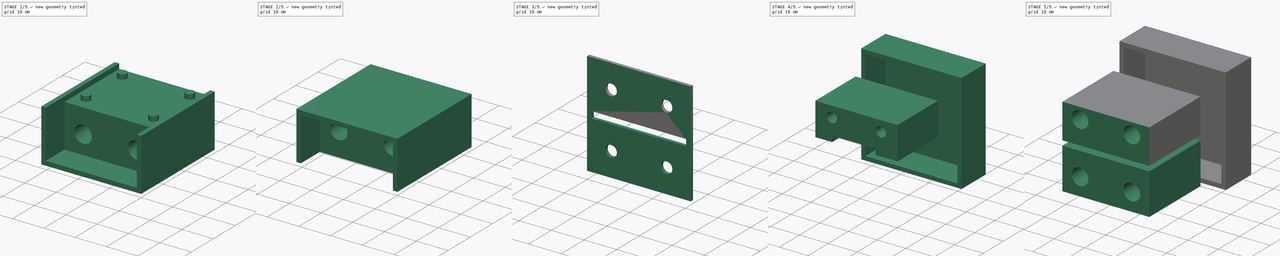
[diagram: build sequence overview — one tinted view per stage of 5, left to right]
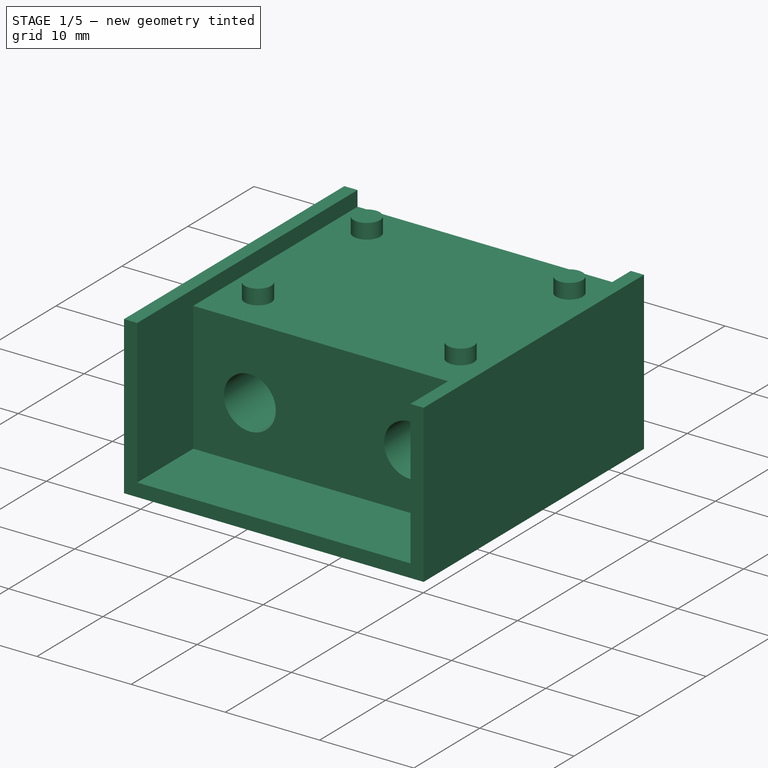
[diagram: stage 1 of 5 — iso view after this stage's code; geometry added in this stage tinted green]
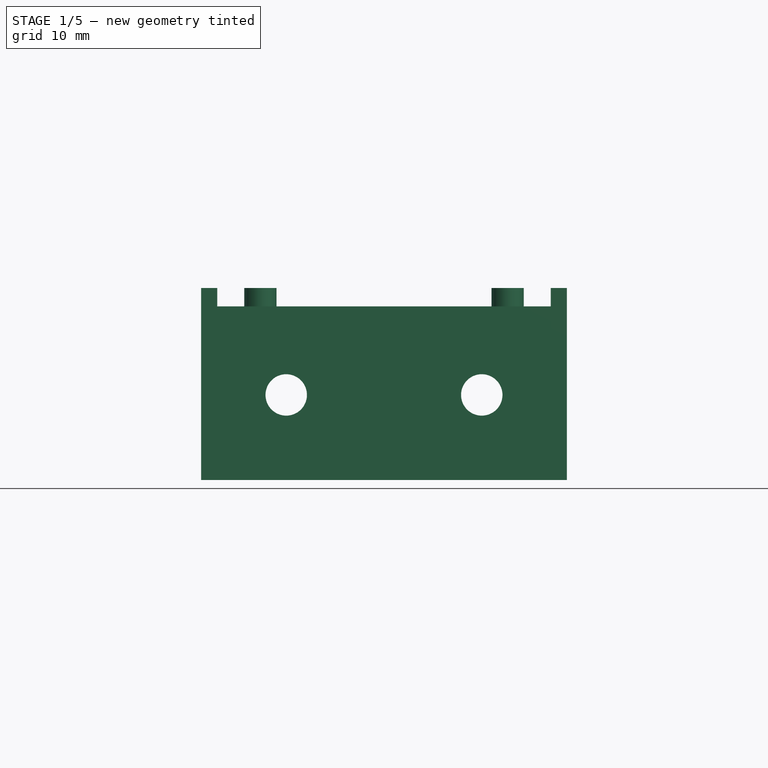
[diagram: stage 1 of 5 — front view after this stage's code; geometry added in this stage tinted green]
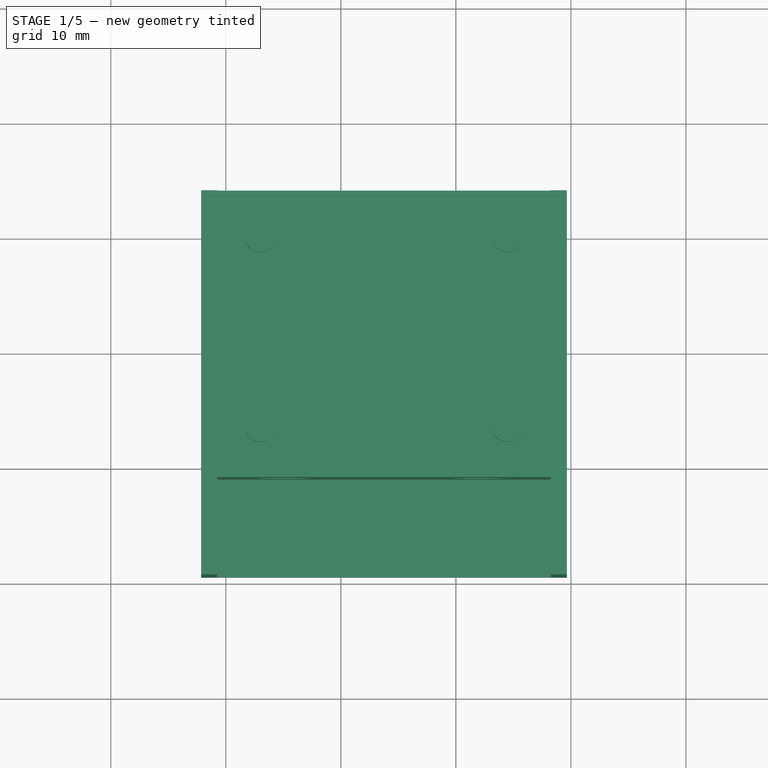
[diagram: stage 1 of 5 — top view after this stage's code; geometry added in this stage tinted green]
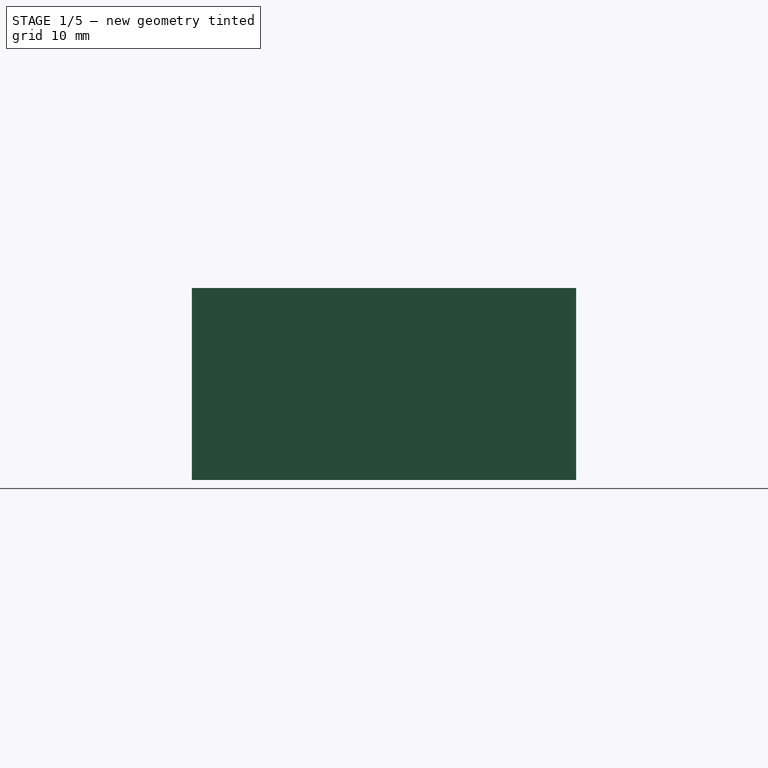
[diagram: stage 1 of 5 — right view after this stage's code; geometry added in this stage tinted green]
FCSTD DOCUMENT  (FreeCAD 1.0R39109 (Git))
Label: CartridgeMk2
License: All rights reserved
LicenseURL: http://en.wikipedia.org/wiki/All_rights_reserved
objects: Sketcher::SketchObject×24, PartDesign::Pad×14, PartDesign::Pocket×11, PartDesign::SubShapeBinder×7, PartDesign::Body×7, Part::Feature×3, App::Part×3, TechDraw::DrawSVGTemplate×1, App::TextDocument×1, TechDraw::DrawProjGroupItem×1, TechDraw::DrawViewSection×1, TechDraw::DrawPage×1
note: 140 computed .brp shape members not serialized (recipe doc carries the construction recipe); baked Part::Feature solids carry a one-line shape summary decoded from their .brp

FEATURE [Part::Feature] Part__Feature  label="5033981892"
  shape: bbox 13.66 x 14.33 x 1.281 mm, 1438 faces (baked)
FEATURE [App::Part] _033981892  label="5033981892001"
  Group = -> [Part__Feature]
  Origin = -> Origin
  Placement = pos=(-123.14,4.99,156.05) rot=(1,0,0;3.14159rad)
FEATURE [Part::Feature] Part__Feature001  label="CartridgeMk1_PCB"
  shape: bbox 27.5 x 32.45 x 1.6 mm, 24 faces (baked)
FEATURE [App::Part] CartridgeMk1_1  label="CartridgeMk1 1"
  Group = -> [_033981892,Part__Feature001]
  Origin = -> Origin001
FEATURE [PartDesign::SubShapeBinder] Binder
  BindCopyOnChange = 0
  BindMode = 0
  ClaimChildren = false
  Context = -> Body [Binder.]
  Fuse = false
  MakeFace = true
  OffsetFill = false
  OffsetIntersection = false
  OffsetJoinType = 0
  OffsetOpenResult = false
  PartialLoad = false
  Refine = true
  Relative = true
  Support = -> [CartridgeMk1_1]
  _Version = 2
FEATURE [Sketcher::SketchObject] Sketch
  ArcFitTolerance = 1e-06
  AttachmentSupport = -> [Binder]
  ExternalGeometry = -> [Binder]
  FullyConstrained = true
  MakeInternals = false
  MapMode = 5
  Placement = pos=(0,0,0) rot=(1,0,0;3.14159rad)
  sketch-geometry (6):
    g0: LineSegment StartX=-2.15022 StartY=-0.55 StartZ=0 EndX=-2.15022 EndY=-33.95 EndZ=0
    g1: LineSegment StartX=-2.15022 StartY=-33.95 StartZ=0 EndX=29.6498 EndY=-33.95 EndZ=0
    g2: LineSegment StartX=29.6498 StartY=-33.95 StartZ=0 EndX=29.6498 EndY=-0.55 EndZ=0
    g3: LineSegment StartX=29.6498 StartY=-0.55 StartZ=0 EndX=-2.15022 EndY=-0.55 EndZ=0
    g4: LineSegment [constr] StartX=-2.15022 StartY=-0.55 StartZ=0 EndX=-0.000439 EndY=-8.95 EndZ=0
    g5: LineSegment [constr] StartX=29.6498 StartY=-0.55 StartZ=0 EndX=27.5 EndY=-8.95 EndZ=0
  constraints (16):
    c: Coincident(g0,g1)
    c: Coincident(g1,g2)
    c: Coincident(g2,g3)
    c: Coincident(g3,g0)
    c: Vertical(g0)
    c: Vertical(g2)
    c: Horizontal(g1)
    c: Horizontal(g3)
    c: Distance(g0,g2) = 31.8
    c: Distance(g1,g3) = 33.4
    c: PointOnObject(g-3,g3)
    c: Coincident(g4,g0)
    c: Coincident(g4,g-5)
    c: Coincident(g5,g2)
    c: Coincident(g5,g-6)
    c: Equal(g5,g4)
FEATURE [PartDesign::Pad] Pad
  Direction = (0,0,-1)
  Length = 15.1
  Length2 = 10
  Profile = -> Sketch
  ReferenceAxis = -> Sketch [N_Axis]
  Refine = true
  Suppressed = false
  Type = 0
FEATURE [Sketcher::SketchObject] Sketch001
  ArcFitTolerance = 1e-06
  AttachmentSupport = -> [Pad]
  ExternalGeometry = -> [Pad,Binder]
  FullyConstrained = true
  MakeInternals = false
  MapMode = 5
  sketch-geometry (12):
    g0: LineSegment StartX=-2.15022 StartY=33.95 StartZ=0 EndX=-2.15022 EndY=0.55 EndZ=0
    g1: LineSegment StartX=-2.15022 StartY=0.55 StartZ=0 EndX=-0.750219 EndY=0.55 EndZ=0
    g2: LineSegment StartX=-0.750219 StartY=0.55 StartZ=0 EndX=-0.750219 EndY=33.95 EndZ=0
    g3: LineSegment StartX=-0.750219 StartY=33.95 StartZ=0 EndX=-2.15022 EndY=33.95 EndZ=0
    g4: LineSegment StartX=29.6498 StartY=33.95 StartZ=0 EndX=28.2498 EndY=33.95 EndZ=0
    g5: LineSegment StartX=28.2498 StartY=33.95 StartZ=0 EndX=28.2498 EndY=0.55 EndZ=0
    g6: LineSegment StartX=28.2498 StartY=0.55 StartZ=0 EndX=29.6498 EndY=0.55 EndZ=0
    g7: LineSegment StartX=29.6498 StartY=0.55 StartZ=0 EndX=29.6498 EndY=33.95 EndZ=0
    g8: Circle CenterX=3 CenterY=30 CenterZ=0 NormalX=0 NormalY=0 NormalZ=1 AngleXU=0 Radius=1.4
    g9: Circle CenterX=24.5 CenterY=30 CenterZ=0 NormalX=0 NormalY=0 NormalZ=1 AngleXU=0 Radius=1.4
    g10: Circle CenterX=3 CenterY=13.5 CenterZ=0 NormalX=0 NormalY=0 NormalZ=1 AngleXU=0 Radius=1.4
    g11: Circle CenterX=24.5 CenterY=13.5 CenterZ=0 NormalX=0 NormalY=0 NormalZ=1 AngleXU=0 Radius=1.4
  constraints (28):
    c: Coincident(g0,g1)
    c: Coincident(g1,g2)
    c: Coincident(g2,g3)
    c: Coincident(g3,g0)
    c: Vertical(g2)
    c: Horizontal(g1)
    c: Horizontal(g3)
    c: Distance(g0,g2) = 1.4
    c: Coincident(g0,g-3)
    c: Coincident(g4,g5)
    c: Coincident(g5,g6)
    c: Coincident(g6,g7)
    c: Coincident(g7,g4)
    c: Horizontal(g4)
    c: Horizontal(g6)
    c: Vertical(g5)
    c: Distance(g5,g7) = 1.4
    c: Coincident(g4,g-3)
    c: Diameter(g8) = 2.8
    c: Equal(g11,g10)
    c: Equal(g10,g9)
    c: Equal(g9,g8)
    c: Coincident(g8,g-6)
    c: Coincident(g9,g-9)
    c: Coincident(g10,g-7)
    c: Coincident(g11,g-8)
    c: Coincident(g0,g-10)
    c: Coincident(g6,g-10)
FEATURE [PartDesign::Pad] Pad001
  BaseFeature = -> Pad
  Direction = (0,0,1)
  Length = 1.6
  Length2 = 10
  Profile = -> Sketch001
  ReferenceAxis = -> Sketch001 [N_Axis]
  Refine = true
  Suppressed = false
  Type = 0
FEATURE [Sketcher::SketchObject] Sketch002
  ArcFitTolerance = 1e-06
  AttachmentSupport = -> [Pad001]
  ExternalGeometry = -> [Pad001]
  FullyConstrained = true
  MakeInternals = false
  MapMode = 5
  Placement = pos=(0,0.55,0) rot=(1,0,0;1.5708rad)
  sketch-geometry (4):
    g0: LineSegment StartX=-0.75022 StartY=0 StartZ=0 EndX=-0.75022 EndY=-13.7 EndZ=0
    g1: LineSegment StartX=-0.75022 StartY=-13.7 StartZ=0 EndX=28.2498 EndY=-13.7 EndZ=0
    g2: LineSegment StartX=28.2498 StartY=-13.7 StartZ=0 EndX=28.2498 EndY=0 EndZ=0
    g3: LineSegment StartX=28.2498 StartY=0 StartZ=0 EndX=-0.75022 EndY=0 EndZ=0
  constraints (10):
    c: Coincident(g0,g1)
    c: Coincident(g1,g2)
    c: Coincident(g2,g3)
    c: Coincident(g3,g0)
    c: Vertical(g0)
    c: Vertical(g2)
    c: Horizontal(g1)
    c: Coincident(g2,g-5)
    c: Coincident(g0,g-6)
    c: DistanceY(g-3,g0) = 1.4
FEATURE [PartDesign::Pocket] Pocket
  BaseFeature = -> Pad001
  Direction = (0,1,-2e-16)
  Length = 8.5
  Length2 = 5
  Profile = -> Sketch002
  ReferenceAxis = -> Sketch002 [N_Axis]
  Refine = true
  Suppressed = false
  Type = 0
FEATURE [PartDesign::Body] Body001  label="FrontSideMk1"
  AllowCompound = false
  Group = -> [Binder001,Sketch004,Pad002,Sketch005,Pocket001,Sketch006,Pocket002,Sketch009,Pocket004,Sketch010,Pocket005]
  Origin = -> Origin003
  Tip = -> Pocket005
FEATURE [Sketcher::SketchObject] Sketch011
  ArcFitTolerance = 1e-06
  AttachmentSupport = -> [Pocket]
  ExternalGeometry = -> [Pocket]
  FullyConstrained = true
  MakeInternals = false
  MapMode = 5
  Placement = pos=(0,9.05,0) rot=(1,0,0;1.5708rad)
  sketch-geometry (2):
    g0: Circle CenterX=5.24978 CenterY=-7.7 CenterZ=0 NormalX=0 NormalY=0 NormalZ=1 AngleXU=0 Radius=2.75
    g1: Circle CenterX=22.2498 CenterY=-7.7 CenterZ=0 NormalX=0 NormalY=0 NormalZ=1 AngleXU=0 Radius=2.75
  constraints (6):
    c: Diameter(g0) = 5.5
    c: Diameter(g1) = 5.5
    c: DistanceX(g-4,g0) = 6
    c: DistanceY(g-4,g0) = 6
    c: DistanceY(g-3,g1) = 6
    c: DistanceX(g1,g-3) = 6
FEATURE [PartDesign::Pocket] Pocket006
  BaseFeature = -> Pocket
  Direction = (0,1,-2e-16)
  Length = 8
  Length2 = 5
  Profile = -> Sketch011
  ReferenceAxis = -> Sketch011 [N_Axis]
  Refine = true
  Suppressed = false
  Type = 0
FEATURE [Sketcher::SketchObject] Sketch012
  ArcFitTolerance = 1e-06
  AttachmentSupport = -> [Pocket006]
  ExternalGeometry = -> [Pocket006]
  FullyConstrained = true
  MakeInternals = false
  MapMode = 5
  Placement = pos=(0,17.05,0) rot=(1,0,0;1.5708rad)
  sketch-geometry (2):
    g0: Circle CenterX=5.24978 CenterY=-7.7 CenterZ=0 NormalX=0 NormalY=0 NormalZ=1 AngleXU=0 Radius=1.8
    g1: Circle CenterX=22.2498 CenterY=-7.7 CenterZ=0 NormalX=0 NormalY=0 NormalZ=1 AngleXU=0 Radius=1.8
  constraints (4):
    c: Diameter(g0) = 3.6
    c: Diameter(g1) = 3.6
    c: Coincident(g1,g-4)
    c: Coincident(g0,g-3)
FEATURE [PartDesign::Pocket] Pocket007
  BaseFeature = -> Pocket006
  Direction = (0,1,-2e-16)
  Length = 20
  Length2 = 5
  Profile = -> Sketch012
  ReferenceAxis = -> Sketch012 [N_Axis]
  Refine = true
  Suppressed = false
  Type = 0
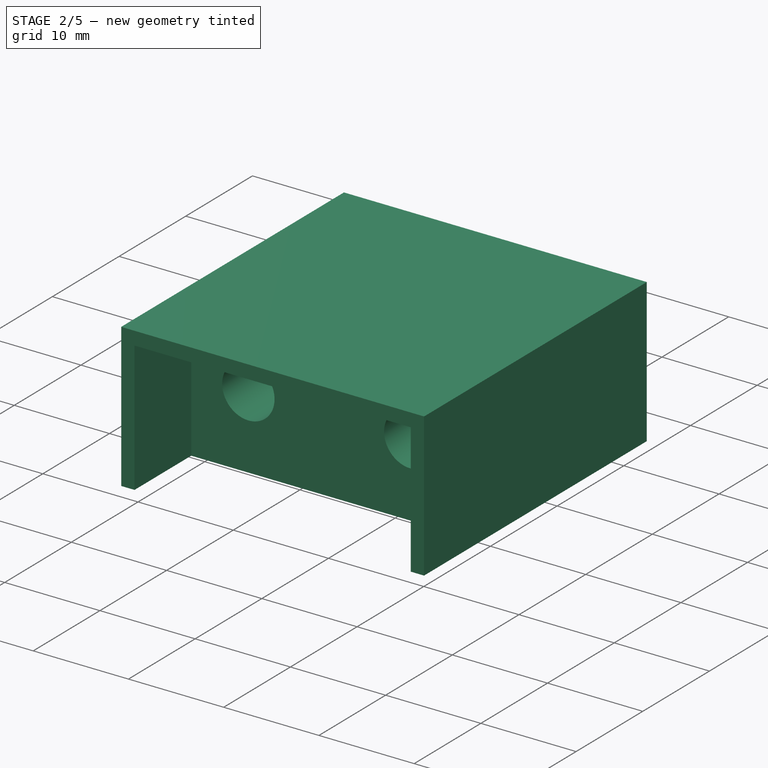
[diagram: stage 2 of 5 — iso view after this stage's code; geometry added in this stage tinted green]
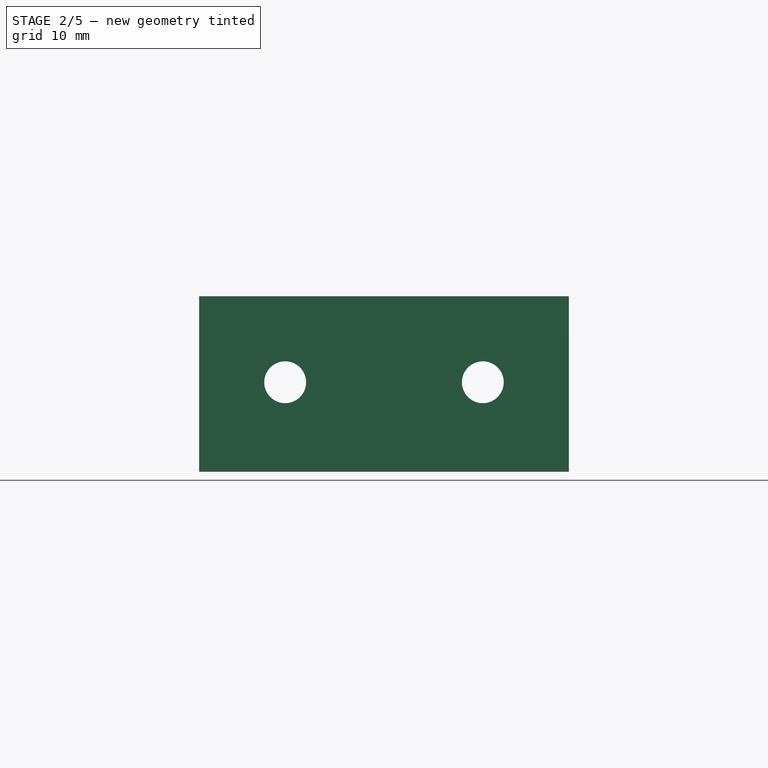
[diagram: stage 2 of 5 — front view after this stage's code; geometry added in this stage tinted green]
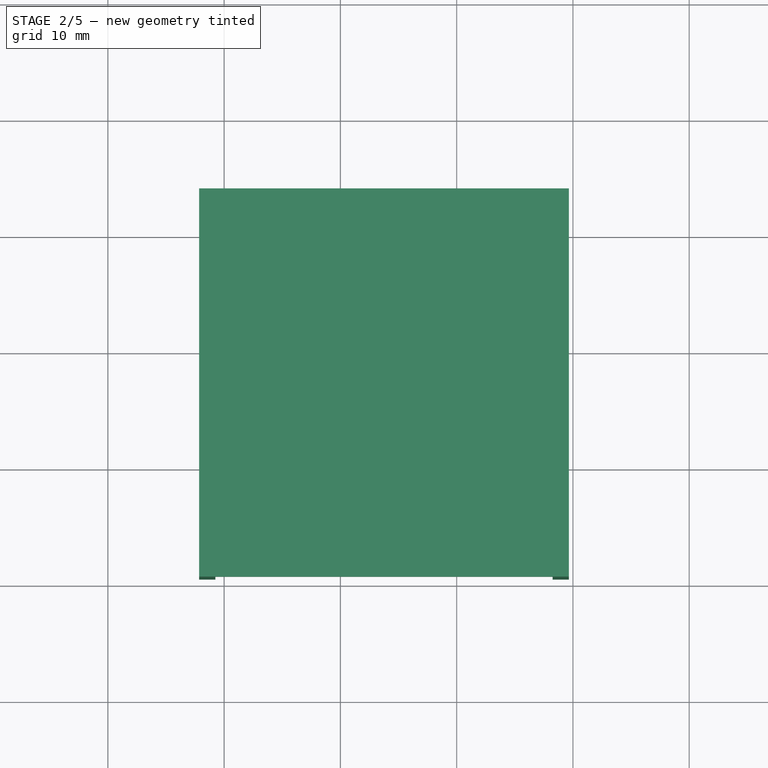
[diagram: stage 2 of 5 — top view after this stage's code; geometry added in this stage tinted green]
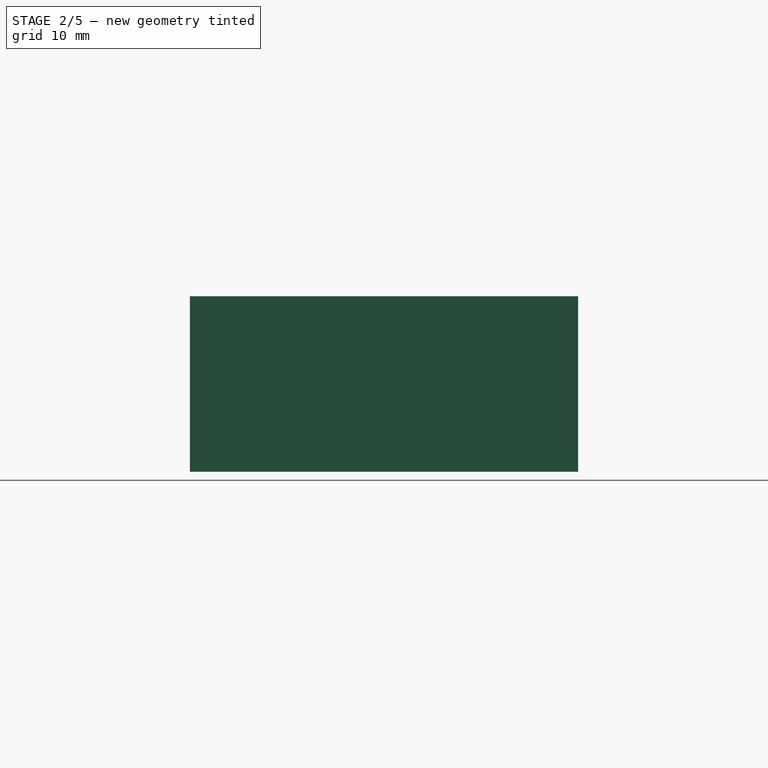
[diagram: stage 2 of 5 — right view after this stage's code; geometry added in this stage tinted green]
FEATURE [PartDesign::SubShapeBinder] Binder001
  BindCopyOnChange = 0
  BindMode = 0
  ClaimChildren = false
  Context = -> Body001 [Binder001.]
  Fuse = false
  MakeFace = true
  OffsetFill = false
  OffsetIntersection = false
  OffsetJoinType = 0
  OffsetOpenResult = false
  PartialLoad = false
  Refine = true
  Relative = true
  Support = -> [Body]
  _Version = 2
FEATURE [Sketcher::SketchObject] Sketch004
  ArcFitTolerance = 1e-06
  AttachmentSupport = -> [Binder001]
  ExternalGeometry = -> [Binder001]
  FullyConstrained = true
  MakeInternals = false
  MapMode = 5
  Placement = pos=(0,0,1.6) rot=(0,0,1;0rad)
  sketch-geometry (4):
    g0: LineSegment StartX=-2.15022 StartY=33.95 StartZ=0 EndX=-2.15022 EndY=0.55 EndZ=0
    g1: LineSegment StartX=-2.15022 StartY=0.55 StartZ=0 EndX=29.6498 EndY=0.55 EndZ=0
    g2: LineSegment StartX=29.6498 StartY=0.55 StartZ=0 EndX=29.6498 EndY=33.95 EndZ=0
    g3: LineSegment StartX=29.6498 StartY=33.95 StartZ=0 EndX=-2.15022 EndY=33.95 EndZ=0
  constraints (10):
    c: Coincident(g0,g1)
    c: Coincident(g1,g2)
    c: Coincident(g2,g3)
    c: Coincident(g3,g0)
    c: Vertical(g0)
    c: Vertical(g2)
    c: Horizontal(g1)
    c: Horizontal(g3)
    c: Coincident(g0,g-3)
    c: Coincident(g1,g-4)
FEATURE [PartDesign::Pad] Pad002
  Direction = (0,0,1)
  Length = 15.1
  Length2 = 10
  Profile = -> Sketch004
  ReferenceAxis = -> Sketch004 [N_Axis]
  Refine = true
  Suppressed = false
  Type = 0
FEATURE [Sketcher::SketchObject] Sketch005
  ArcFitTolerance = 1e-06
  AttachmentSupport = -> [Pad002]
  ExternalGeometry = -> [Pad002]
  FullyConstrained = true
  MakeInternals = false
  MapMode = 5
  Placement = pos=(0,0.55,0) rot=(1,0,0;1.5708rad)
  sketch-geometry (4):
    g0: LineSegment StartX=-0.75022 StartY=1.6 StartZ=0 EndX=28.2498 EndY=1.6 EndZ=0
    g1: LineSegment StartX=28.2498 StartY=1.6 StartZ=0 EndX=28.2498 EndY=15.3 EndZ=0
    g2: LineSegment StartX=28.2498 StartY=15.3 StartZ=0 EndX=-0.75022 EndY=15.3 EndZ=0
    g3: LineSegment StartX=-0.75022 StartY=15.3 StartZ=0 EndX=-0.75022 EndY=1.6 EndZ=0
  constraints (12):
    c: Coincident(g0,g1)
    c: Coincident(g1,g2)
    c: Coincident(g2,g3)
    c: Coincident(g3,g0)
    c: Horizontal(g0)
    c: Horizontal(g2)
    c: Vertical(g1)
    c: Vertical(g3)
    c: PointOnObject(g0,g-3)
    c: DistanceX(g1,g-4) = 1.4
    c: DistanceY(g1,g-4) = 1.4
    c: DistanceX(g-4,g2) = 1.4
FEATURE [PartDesign::Pocket] Pocket001
  BaseFeature = -> Pad002
  Direction = (0,1,-2e-16)
  Length = 8.5
  Length2 = 5
  Profile = -> Sketch005
  ReferenceAxis = -> Sketch005 [N_Axis]
  Refine = true
  Suppressed = false
  Type = 0
FEATURE [Sketcher::SketchObject] Sketch006
  ArcFitTolerance = 1e-06
  AttachmentSupport = -> [Pocket001]
  ExternalGeometry = -> [Binder001,Pocket001]
  FullyConstrained = true
  MakeInternals = false
  MapMode = 5
  Placement = pos=(0,0,1.6) rot=(1,0,0;3.14159rad)
  sketch-geometry (4):
    g0: LineSegment StartX=22.5 StartY=-10.05 StartZ=0 EndX=5 EndY=-10.05 EndZ=0
    g1: LineSegment StartX=5 StartY=-10.05 StartZ=0 EndX=5 EndY=-32.95 EndZ=0
    g2: LineSegment StartX=5 StartY=-32.95 StartZ=0 EndX=22.5 EndY=-32.95 EndZ=0
    g3: LineSegment StartX=22.5 StartY=-32.95 StartZ=0 EndX=22.5 EndY=-10.05 EndZ=0
  constraints (12):
    c: Coincident(g0,g1)
    c: Coincident(g1,g2)
    c: Coincident(g2,g3)
    c: Coincident(g3,g0)
    c: Horizontal(g0)
    c: Horizontal(g2)
    c: Vertical(g1)
    c: Vertical(g3)
    c: DistanceY(g-7,g1) = 1
    c: DistanceX(g-6,g1) = 2
    c: DistanceX(g2,g-3) = 2
    c: DistanceY(g0,g-8) = 1
FEATURE [PartDesign::Pocket] Pocket002
  BaseFeature = -> Pocket001
  Direction = (0,0,1)
  Length = 2
  Length2 = 5
  Profile = -> Sketch006
  ReferenceAxis = -> Sketch006 [N_Axis]
  Refine = true
  Suppressed = false
  Type = 0
FEATURE [Sketcher::SketchObject] Sketch009
  ArcFitTolerance = 1e-06
  AttachmentSupport = -> [Pocket002]
  ExternalGeometry = -> [Pocket002]
  FullyConstrained = true
  MakeInternals = false
  MapMode = 5
  Placement = pos=(0,9.05,-2.1e-15) rot=(1,0,0;1.5708rad)
  sketch-geometry (2):
    g0: Circle CenterX=5.24978 CenterY=9.3 CenterZ=0 NormalX=0 NormalY=0 NormalZ=1 AngleXU=0 Radius=2.75
    g1: Circle CenterX=22.2498 CenterY=9.3 CenterZ=0 NormalX=0 NormalY=0 NormalZ=1 AngleXU=0 Radius=2.75
  constraints (6):
    c: Diameter(g0) = 5.5
    c: DistanceX(g-3,g0) = 6
    c: DistanceY(g0,g-3) = 6
    c: Diameter(g1) = 5.5
    c: DistanceX(g1,g-4) = 6
    c: DistanceY(g1,g-4) = 6
FEATURE [PartDesign::Pocket] Pocket004
  BaseFeature = -> Pocket002
  Direction = (0,1,-2e-16)
  Length = 8
  Length2 = 5
  Profile = -> Sketch009
  ReferenceAxis = -> Sketch009 [N_Axis]
  Refine = true
  Suppressed = false
  Type = 0
FEATURE [Sketcher::SketchObject] Sketch010
  ArcFitTolerance = 1e-06
  AttachmentSupport = -> [Pocket004]
  ExternalGeometry = -> [Pocket004]
  FullyConstrained = true
  MakeInternals = false
  MapMode = 5
  Placement = pos=(0,17.05,0) rot=(1,0,0;1.5708rad)
  sketch-geometry (2):
    g0: Circle CenterX=5.24978 CenterY=9.3 CenterZ=0 NormalX=0 NormalY=0 NormalZ=1 AngleXU=0 Radius=1.8
    g1: Circle CenterX=22.2498 CenterY=9.3 CenterZ=0 NormalX=0 NormalY=0 NormalZ=1 AngleXU=0 Radius=1.8
  constraints (4):
    c: Diameter(g0) = 3.6
    c: Coincident(g0,g-3)
    c: Diameter(g1) = 3.6
    c: Coincident(g1,g-4)
FEATURE [PartDesign::Pocket] Pocket005
  BaseFeature = -> Pocket004
  Direction = (0,1,-2e-16)
  Length = 20
  Length2 = 5
  Profile = -> Sketch010
  ReferenceAxis = -> Sketch010 [N_Axis]
  Refine = true
  Suppressed = false
  Type = 0
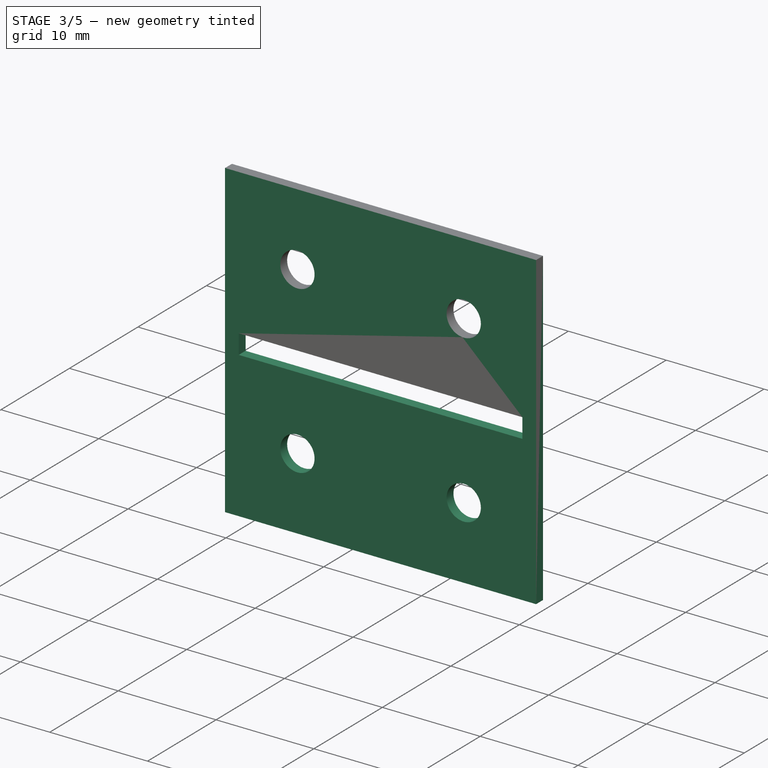
[diagram: stage 3 of 5 — iso view after this stage's code; geometry added in this stage tinted green]
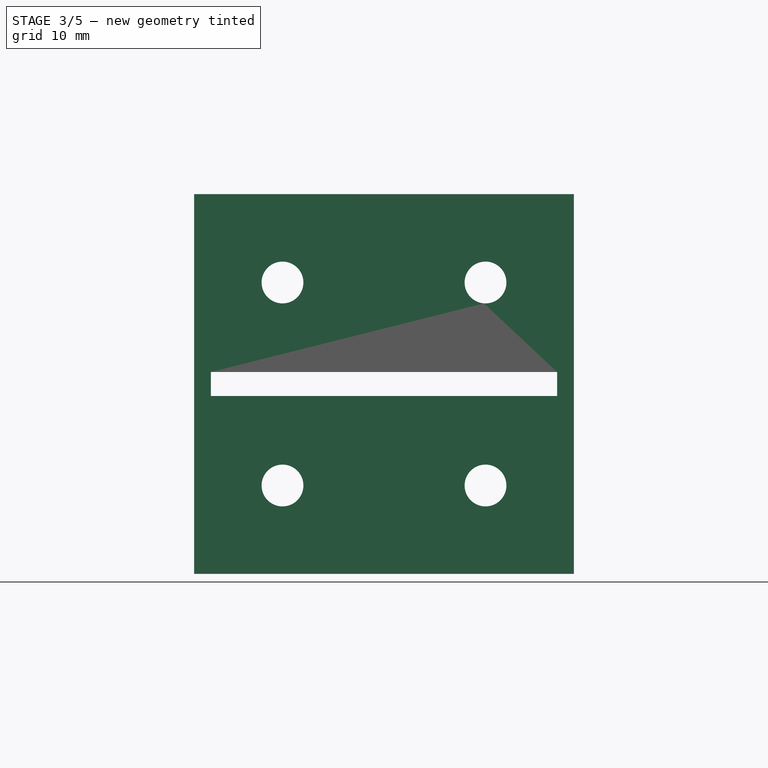
[diagram: stage 3 of 5 — front view after this stage's code; geometry added in this stage tinted green]
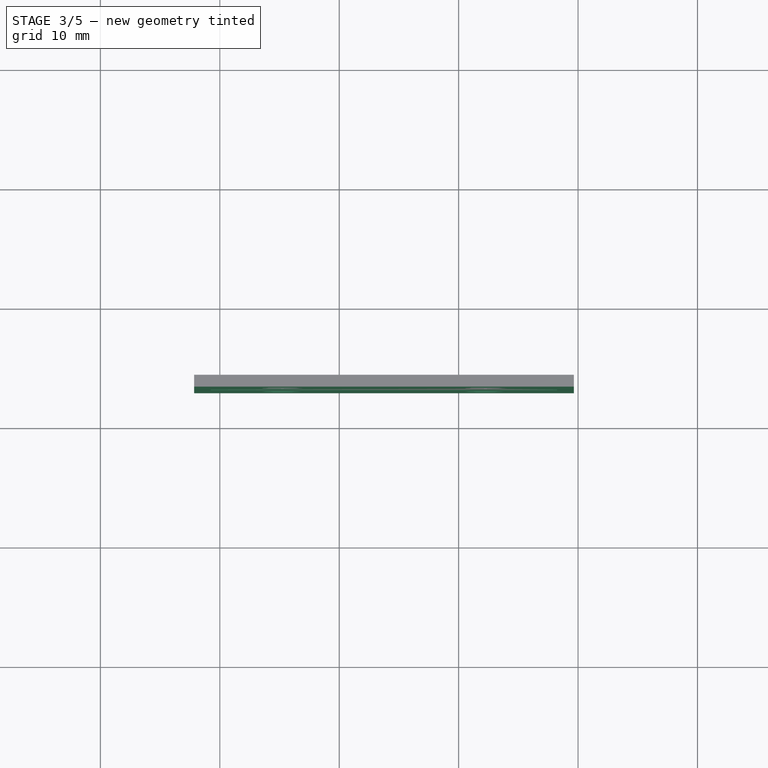
[diagram: stage 3 of 5 — top view after this stage's code; geometry added in this stage tinted green]
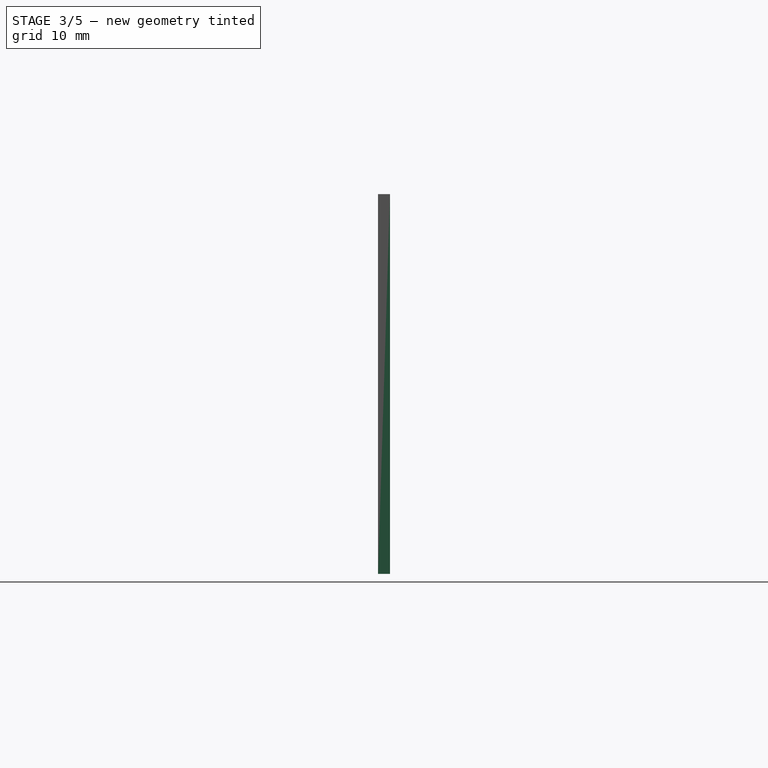
[diagram: stage 3 of 5 — right view after this stage's code; geometry added in this stage tinted green]
FEATURE [PartDesign::SubShapeBinder] Binder002
  BindCopyOnChange = 0
  BindMode = 0
  ClaimChildren = false
  Context = -> Body002 [Binder002.]
  Fuse = false
  MakeFace = true
  OffsetFill = false
  OffsetIntersection = false
  OffsetJoinType = 0
  OffsetOpenResult = false
  PartialLoad = false
  Refine = true
  Relative = true
  Support = -> [Body,Body001]
  _Version = 2
FEATURE [Sketcher::SketchObject] Sketch007
  ArcFitTolerance = 1e-06
  AttachmentSupport = -> [Binder002]
  ExternalGeometry = -> [Binder002]
  FullyConstrained = true
  MakeInternals = false
  MapMode = 5
  Placement = pos=(0,33.95,0) rot=(0,0.707107,0.707107;3.14159rad)
  sketch-geometry (36):
    g0: LineSegment StartX=-29.6498 StartY=16.7 StartZ=0 EndX=-29.6498 EndY=-15.1 EndZ=0
    g1: LineSegment StartX=-29.6498 StartY=-15.1 StartZ=0 EndX=2.15022 EndY=-15.1 EndZ=0
    g2: LineSegment StartX=2.15022 StartY=-15.1 StartZ=0 EndX=2.15022 EndY=16.7 EndZ=0
    g3: LineSegment StartX=2.15022 StartY=16.7 StartZ=0 EndX=-29.6498 EndY=16.7 EndZ=0
    g4: LineSegment [constr] StartX=-29.6498 StartY=12.8 StartZ=0 EndX=-25.7498 EndY=12.8 EndZ=0
    g5: LineSegment [constr] StartX=-25.7498 StartY=12.8 StartZ=0 EndX=-17.7498 EndY=12.8 EndZ=0
    g6: LineSegment [constr] StartX=-17.7498 StartY=12.8 StartZ=0 EndX=-9.74978 EndY=12.8 EndZ=0
    g7: LineSegment [constr] StartX=-9.74978 StartY=12.8 StartZ=0 EndX=-1.74978 EndY=12.8 EndZ=0
    g8: LineSegment [constr] StartX=-1.74978 StartY=12.8 StartZ=0 EndX=2.15022 EndY=12.8 EndZ=0
    g9: LineSegment [constr] StartX=-25.7498 StartY=16.7 StartZ=0 EndX=-25.7498 EndY=12.8 EndZ=0
    g10: LineSegment [constr] StartX=-25.7498 StartY=12.8 StartZ=0 EndX=-25.7498 EndY=4.8 EndZ=0
    g11: LineSegment [constr] StartX=-25.7498 StartY=4.8 StartZ=0 EndX=-25.7498 EndY=-3.2 EndZ=0
    g12: LineSegment [constr] StartX=-25.7498 StartY=-3.2 StartZ=0 EndX=-25.7498 EndY=-11.2 EndZ=0
    g13: LineSegment [constr] StartX=-25.7498 StartY=-11.2 StartZ=0 EndX=-25.7498 EndY=-15.1 EndZ=0
    g14: LineSegment [constr] StartX=-29.6498 StartY=4.8 StartZ=0 EndX=2.15022 EndY=4.8 EndZ=0
    g15: LineSegment [constr] StartX=-29.6498 StartY=-3.2 StartZ=0 EndX=2.15022 EndY=-3.2 EndZ=0
    g16: LineSegment [constr] StartX=-29.6498 StartY=-11.2 StartZ=0 EndX=2.15022 EndY=-11.2 EndZ=0
    g17: LineSegment [constr] StartX=-17.7498 StartY=16.7 StartZ=0 EndX=-17.7498 EndY=-15.1 EndZ=0
    g18: LineSegment [constr] StartX=-9.74978 StartY=16.7 StartZ=0 EndX=-9.74978 EndY=-15.1 EndZ=0
    g19: LineSegment [constr] StartX=-1.74978 StartY=16.7 StartZ=0 EndX=-1.74978 EndY=-15.1 EndZ=0
    g20: Circle CenterX=-25.7498 CenterY=12.8 CenterZ=0 NormalX=0 NormalY=0 NormalZ=1 AngleXU=0 Radius=2.5
    g21: Circle CenterX=-17.7498 CenterY=12.8 CenterZ=0 NormalX=0 NormalY=0 NormalZ=1 AngleXU=0 Radius=2.5
    g22: Circle CenterX=-9.74978 CenterY=12.8 CenterZ=0 NormalX=0 NormalY=0 NormalZ=1 AngleXU=0 Radius=2.5
    g23: Circle CenterX=-1.74978 CenterY=12.8 CenterZ=0 NormalX=0 NormalY=0 NormalZ=1 AngleXU=0 Radius=2.5
    g24: Circle CenterX=-25.7498 CenterY=4.8 CenterZ=0 NormalX=0 NormalY=0 NormalZ=1 AngleXU=0 Radius=2.5
    g25: Circle CenterX=-17.7498 CenterY=4.8 CenterZ=0 NormalX=0 NormalY=0 NormalZ=1 AngleXU=0 Radius=2.5
    g26: Circle CenterX=-9.74978 CenterY=4.8 CenterZ=0 NormalX=0 NormalY=0 NormalZ=1 AngleXU=0 Radius=2.5
    g27: Circle CenterX=-1.74978 CenterY=4.8 CenterZ=0 NormalX=0 NormalY=0 NormalZ=1 AngleXU=0 Radius=2.5
    g28: Circle CenterX=-25.7498 CenterY=-3.2 CenterZ=0 NormalX=0 NormalY=0 NormalZ=1 AngleXU=0 Radius=2.5
    g29: Circle CenterX=-17.7498 CenterY=-3.2 CenterZ=0 NormalX=0 NormalY=0 NormalZ=1 AngleXU=0 Radius=2.5
    g30: Circle CenterX=-9.74978 CenterY=-3.2 CenterZ=0 NormalX=0 NormalY=0 NormalZ=1 AngleXU=0 Radius=2.5
    g31: Circle CenterX=-1.74978 CenterY=-3.2 CenterZ=0 NormalX=0 NormalY=0 NormalZ=1 AngleXU=0 Radius=2.5
    g32: Circle CenterX=-25.7498 CenterY=-11.2 CenterZ=0 NormalX=0 NormalY=0 NormalZ=1 AngleXU=0 Radius=2.5
    g33: Circle CenterX=-17.7498 CenterY=-11.2 CenterZ=0 NormalX=0 NormalY=0 NormalZ=1 AngleXU=0 Radius=2.5
    g34: Circle CenterX=-9.74978 CenterY=-11.2 CenterZ=0 NormalX=0 NormalY=0 NormalZ=1 AngleXU=0 Radius=2.5
    g35: Circle CenterX=-1.74978 CenterY=-11.2 CenterZ=0 NormalX=0 NormalY=0 NormalZ=1 AngleXU=0 Radius=2.5
  constraints (106):
    c: Coincident(g0,g1)
    c: Coincident(g1,g2)
    c: Coincident(g2,g3)
    c: Coincident(g3,g0)
    c: Vertical(g0)
    c: Vertical(g2)
    c: Horizontal(g1)
    c: Horizontal(g3)
    c: Coincident(g0,g-3)
    c: Coincident(g1,g-4)
    c: PointOnObject(g4,g0)
    c: Horizontal(g4)
    c: Coincident(g5,g4)
    c: Horizontal(g5)
    c: Coincident(g6,g5)
    c: Horizontal(g6)
    c: Coincident(g7,g6)
    c: Horizontal(g7)
    c: Coincident(g8,g7)
    c: PointOnObject(g8,g2)
    c: Horizontal(g8)
    c: PointOnObject(g9,g3)
    c: Coincident(g9,g4)
    c: Vertical(g9)
    c: Coincident(g10,g4)
    c: Vertical(g10)
    c: Coincident(g11,g10)
    c: Vertical(g11)
    c: Coincident(g12,g11)
    c: Vertical(g12)
    c: Coincident(g13,g12)
    c: PointOnObject(g13,g1)
    c: Vertical(g13)
    c: DistanceX(g5,g5) = 8
    c: Equal(g6,g5)
    c: Equal(g5,g7)
    c: Equal(g4,g8)
    c: DistanceY(g10,g10) = 8
    c: Equal(g10,g11)
    c: Equal(g11,g12)
    c: Equal(g9,g13)
    c: PointOnObject(g14,g0)
    c: PointOnObject(g14,g2)
    c: Horizontal(g14)
    c: PointOnObject(g15,g0)
    c: PointOnObject(g15,g2)
    c: Horizontal(g15)
    c: PointOnObject(g16,g0)
    c: PointOnObject(g16,g2)
    c: Horizontal(g16)
    c: PointOnObject(g12,g16)
    c: PointOnObject(g11,g15)
    c: PointOnObject(g10,g14)
    c: PointOnObject(g17,g3)
    c: PointOnObject(g17,g1)
    c: Vertical(g17)
    c: PointOnObject(g18,g3)
    c: PointOnObject(g18,g1)
    c: Vertical(g18)
    c: PointOnObject(g19,g3)
    c: PointOnObject(g19,g1)
    c: Vertical(g19)
    c: PointOnObject(g5,g17)
    c: PointOnObject(g6,g18)
    c: PointOnObject(g7,g19)
    c: Diameter(g20) = 5
    c: Equal(g20,g21)
    c: Equal(g21,g22)
    c: Equal(g22,g23)
    c: Coincident(g20,g4)
    c: Coincident(g5,g21)
    c: Coincident(g6,g22)
    c: Coincident(g7,g23)
    c: Equal(g24,g25)
    c: Equal(g25,g26)
    c: Equal(g26,g27)
    c: Equal(g27,g20)
    c: Coincident(g10,g24)
    c: PointOnObject(g25,g14)
    c: PointOnObject(g25,g17)
    c: PointOnObject(g26,g14)
    c: PointOnObject(g26,g18)
    c: PointOnObject(g27,g14)
    c: PointOnObject(g27,g19)
    c: Equal(g28,g29)
    c: Equal(g29,g30)
    c: Equal(g30,g31)
    c: Equal(g31,g20)
    c: Coincident(g11,g28)
    c: PointOnObject(g29,g15)
    c: PointOnObject(g29,g17)
    c: PointOnObject(g30,g15)
    c: PointOnObject(g30,g18)
    c: PointOnObject(g31,g15)
    c: PointOnObject(g31,g19)
    c: Equal(g32,g33)
    c: Equal(g33,g34)
    c: Equal(g34,g35)
    c: Equal(g35,g20)
    c: Coincident(g12,g32)
    c: PointOnObject(g33,g16)
    c: PointOnObject(g33,g17)
    c: PointOnObject(g34,g16)
    c: PointOnObject(g34,g18)
    c: PointOnObject(g35,g16)
    c: PointOnObject(g35,g19)
FEATURE [PartDesign::Pad] Pad003
  Direction = (0,1,-2e-16)
  Length = 14.6
  Length2 = 10
  Profile = -> Sketch007 [Edge4,Edge3,Edge2,Edge1]
  ReferenceAxis = -> Sketch007 [N_Axis]
  Refine = true
  Suppressed = false
  Type = 0
  expr: Length = 5 mm + 9.6 mm
FEATURE [PartDesign::Pad] Pad004
  BaseFeature = -> Pad003
  Direction = (0,1,-2e-16)
  Length = 16.3
  Length2 = 10
  Profile = -> Sketch007 [Edge8,Edge12,Edge16,Edge20,Edge19,Edge15,Edge11,Edge7,Edge6,Edge10,Edge14,Edge18,Edge17,Edge13,Edge9,Edge5]
  ReferenceAxis = -> Sketch007 [N_Axis]
  Refine = true
  Suppressed = false
  Type = 0
  expr: Length = 6.7 mm + 9.6 mm
FEATURE [Sketcher::SketchObject] Sketch008
  ArcFitTolerance = 1e-06
  AttachmentSupport = -> [Pad004]
  ExternalGeometry = -> [Pad004]
  FullyConstrained = true
  MakeInternals = false
  MapMode = 5
  Placement = pos=(0,33.95,-7.5e-15) rot=(1,0,0;1.5708rad)
  sketch-geometry (8):
    g0: LineSegment [constr] StartX=-0.75022 StartY=15.3 StartZ=0 EndX=-0.75022 EndY=-13.7 EndZ=0
    g1: LineSegment [constr] StartX=-0.75022 StartY=-13.7 StartZ=0 EndX=28.2498 EndY=-13.7 EndZ=0
    g2: LineSegment [constr] StartX=28.2498 StartY=-13.7 StartZ=0 EndX=28.2498 EndY=15.3 EndZ=0
    g3: LineSegment [constr] StartX=28.2498 StartY=15.3 StartZ=0 EndX=-0.75022 EndY=15.3 EndZ=0
    g4: Circle CenterX=5.24978 CenterY=9.3 CenterZ=0 NormalX=0 NormalY=0 NormalZ=1 AngleXU=0 Radius=2.2
    g5: Circle CenterX=22.2498 CenterY=9.3 CenterZ=0 NormalX=0 NormalY=0 NormalZ=1 AngleXU=0 Radius=2.2
    g6: Circle CenterX=5.24978 CenterY=-7.7 CenterZ=0 NormalX=0 NormalY=0 NormalZ=1 AngleXU=0 Radius=2.2
    g7: Circle CenterX=22.2498 CenterY=-7.7 CenterZ=0 NormalX=0 NormalY=0 NormalZ=1 AngleXU=0 Radius=2.2
  constraints (24):
    c: Coincident(g0,g1)
    c: Coincident(g1,g2)
    c: Coincident(g2,g3)
    c: Coincident(g3,g0)
    c: Vertical(g0)
    c: Vertical(g2)
    c: Horizontal(g1)
    c: Horizontal(g3)
    c: DistanceY(g0,g-3) = 1.4
    c: DistanceX(g-3,g0) = 1.4
    c: DistanceY(g-4,g0) = 1.4
    c: DistanceX(g1,g-4) = 1.4
    c: Diameter(g4) = 4.4
    c: DistanceX(g0,g4) = 6
    c: DistanceY(g4,g0) = 6
    c: Diameter(g5) = 4.4
    c: DistanceY(g5,g2) = 6
    c: DistanceX(g5,g2) = 6
    c: Diameter(g6) = 4.4
    c: DistanceX(g0,g6) = 6
    c: DistanceY(g0,g6) = 6
    c: Diameter(g7) = 4.4
    c: DistanceX(g7,g1) = 6
    c: DistanceY(g1,g7) = 6
FEATURE [PartDesign::Pocket] Pocket003
  BaseFeature = -> Pad004
  Direction = (0,1,-2e-16)
  Length = 6
  Length2 = 5
  Profile = -> Sketch008
  ReferenceAxis = -> Sketch008 [N_Axis]
  Refine = true
  Suppressed = false
  Type = 0
FEATURE [PartDesign::Body] Body  label="BackSideMk1"
  AllowCompound = false
  Group = -> [Binder,Sketch,Pad,Sketch001,Pad001,Sketch002,Pocket,Sketch011,Pocket006,Sketch012,Pocket007]
  Origin = -> Origin002
  Tip = -> Pocket007
FEATURE [Part::Feature] Part__Feature002  label="_autosave-CartridgeMk1_PCB"
  Placement = pos=(0,-4.1e-15,4.4e-15) rot=(0,0,1;0rad)
  shape: bbox 27.5 x 32.45 x 1.6 mm, 24 faces (baked)
FEATURE [App::Part] CartridgeMk1_simple_1  label="CartridgeMk1_simple 1"
  Group = -> [Part__Feature002]
  Origin = -> Origin005
FEATURE [PartDesign::SubShapeBinder] Binder003
  BindCopyOnChange = 0
  BindMode = 0
  ClaimChildren = false
  Context = -> Body003 [Binder003.]
  Fuse = false
  MakeFace = true
  OffsetFill = false
  OffsetIntersection = false
  OffsetJoinType = 0
  OffsetOpenResult = false
  PartialLoad = false
  Refine = true
  Relative = true
  Support = -> [Body002]
  _Version = 2
FEATURE [Sketcher::SketchObject] Sketch013
  ArcFitTolerance = 1e-06
  AttachmentSupport = -> [Binder003]
  ExternalGeometry = -> [Binder003]
  FullyConstrained = true
  MakeInternals = false
  MapMode = 5
  Placement = pos=(0,33.95,-7.5e-15) rot=(1,0,0;1.5708rad)
  sketch-geometry (14):
    g0: LineSegment StartX=-2.15022 StartY=16.7 StartZ=0 EndX=-2.15022 EndY=-15.1 EndZ=0
    g1: LineSegment StartX=-2.15022 StartY=-15.1 StartZ=0 EndX=29.6498 EndY=-15.1 EndZ=0
    g2: LineSegment StartX=29.6498 StartY=-15.1 StartZ=0 EndX=29.6498 EndY=16.7 EndZ=0
    g3: LineSegment StartX=29.6498 StartY=16.7 StartZ=0 EndX=-2.15022 EndY=16.7 EndZ=0
    g4: Circle CenterX=5.24978 CenterY=9.3 CenterZ=0 NormalX=0 NormalY=0 NormalZ=1 AngleXU=0 Radius=1.75
    g5: Circle CenterX=22.2498 CenterY=9.3 CenterZ=0 NormalX=0 NormalY=0 NormalZ=1 AngleXU=0 Radius=1.75
    g6: Circle CenterX=22.2498 CenterY=-7.7 CenterZ=0 NormalX=0 NormalY=0 NormalZ=1 AngleXU=0 Radius=1.75
    g7: Circle CenterX=5.24978 CenterY=-7.7 CenterZ=0 NormalX=0 NormalY=0 NormalZ=1 AngleXU=0 Radius=1.75
    g8: LineSegment StartX=-0.75022 StartY=1.8 StartZ=0 EndX=-0.75022 EndY=-0.2 EndZ=0
    g9: LineSegment StartX=-0.75022 StartY=-0.2 StartZ=0 EndX=28.2498 EndY=-0.2 EndZ=0
    g10: LineSegment StartX=28.2498 StartY=-0.2 StartZ=0 EndX=28.2498 EndY=1.8 EndZ=0
    g11: LineSegment StartX=28.2498 StartY=1.8 StartZ=0 EndX=-0.75022 EndY=1.8 EndZ=0
    g12: LineSegment [constr] StartX=29.6498 StartY=16.7 StartZ=0 EndX=28.2498 EndY=1.8 EndZ=0
    g13: LineSegment [constr] StartX=29.6498 StartY=-15.1 StartZ=0 EndX=28.2498 EndY=-0.2 EndZ=0
  constraints (34):
    c: Coincident(g0,g1)
    c: Coincident(g1,g2)
    c: Coincident(g2,g3)
    c: Coincident(g3,g0)
    c: Vertical(g0)
    c: Vertical(g2)
    c: Horizontal(g1)
    c: Horizontal(g3)
    c: Coincident(g8,g9)
    c: Coincident(g9,g10)
    c: Coincident(g10,g11)
    c: Coincident(g11,g8)
    c: Vertical(g8)
    c: Vertical(g10)
    c: Horizontal(g9)
    c: Horizontal(g11)
    c: DistanceY(g8,g8) = 2
    c: DistanceX(g0,g8) = 1.4
    c: DistanceX(g9,g1) = 1.4
    c: Coincident(g12,g2)
    c: Coincident(g12,g10)
    c: Coincident(g13,g1)
    c: Coincident(g13,g9)
    c: Equal(g13,g12)
    c: Diameter(g4) = 3.5
    c: Diameter(g5) = 3.5
    c: Diameter(g7) = 3.5
    c: Diameter(g6) = 3.5
    c: Coincident(g4,g-4)
    c: Coincident(g5,g-5)
    c: Coincident(g2,g-8)
    c: Coincident(g7,g-7)
    c: Coincident(g6,g-6)
    c: Coincident(g0,g-3)
FEATURE [PartDesign::Pad] Pad005
  Direction = (0,-1,2e-16)
  Length = 1
  Length2 = 10
  Profile = -> Sketch013
  ReferenceAxis = -> Sketch013 [N_Axis]
  Refine = true
  Suppressed = false
  Type = 0
FEATURE [PartDesign::Body] Body006  label="Montagehilfe"
  AllowCompound = false
  Group = -> [Binder006,Sketch021,Pad011,Sketch022,Pad012]
  Origin = -> Origin009
  Tip = -> Pad012
FEATURE [Sketcher::SketchObject] Sketch023
  ArcFitTolerance = 1e-06
  AttachmentSupport = -> [Pocket003]
  ExternalGeometry = -> [Pocket003]
  FullyConstrained = true
  MakeInternals = false
  MapMode = 5
  Placement = pos=(0,3.7e-15,16.7) rot=(0,0,1;0rad)
  sketch-geometry (18):
    g0: Circle CenterX=1.74978 CenterY=44.45 CenterZ=0 NormalX=0 NormalY=0 NormalZ=1 AngleXU=0 Radius=2.5
    g1: Circle CenterX=9.74978 CenterY=44.45 CenterZ=0 NormalX=0 NormalY=0 NormalZ=1 AngleXU=0 Radius=2.5
    g2: Circle CenterX=17.7498 CenterY=44.45 CenterZ=0 NormalX=0 NormalY=0 NormalZ=1 AngleXU=0 Radius=2.5
    g3: Circle CenterX=25.7498 CenterY=44.45 CenterZ=0 NormalX=0 NormalY=0 NormalZ=1 AngleXU=0 Radius=2.5
    g4: LineSegment [constr] StartX=1.74978 StartY=44.45 StartZ=0 EndX=9.74978 EndY=44.45 EndZ=0
    g5: LineSegment [constr] StartX=9.74978 StartY=44.45 StartZ=0 EndX=17.7498 EndY=44.45 EndZ=0
    g6: LineSegment [constr] StartX=17.7498 StartY=44.45 StartZ=0 EndX=25.7498 EndY=44.45 EndZ=0
    g7: LineSegment [constr] StartX=1.74978 StartY=44.45 StartZ=0 EndX=-2.15022 EndY=44.45 EndZ=0
    g8: LineSegment [constr] StartX=25.7498 StartY=44.45 StartZ=0 EndX=29.6498 EndY=44.45 EndZ=0
    g9: LineSegment [constr] StartX=1.74978 StartY=44.45 StartZ=0 EndX=1.74978 EndY=48.55 EndZ=0
    g10: Circle CenterX=1.74978 CenterY=36.45 CenterZ=0 NormalX=0 NormalY=0 NormalZ=1 AngleXU=0 Radius=2.5
    g11: Circle CenterX=9.74978 CenterY=36.45 CenterZ=0 NormalX=0 NormalY=0 NormalZ=1 AngleXU=0 Radius=2.5
    g12: Circle CenterX=17.7498 CenterY=36.45 CenterZ=0 NormalX=0 NormalY=0 NormalZ=1 AngleXU=0 Radius=2.5
    g13: Circle CenterX=25.7498 CenterY=36.45 CenterZ=0 NormalX=0 NormalY=0 NormalZ=1 AngleXU=0 Radius=2.5
    g14: LineSegment [constr] StartX=1.74978 StartY=36.45 StartZ=0 EndX=9.74978 EndY=36.45 EndZ=0
    g15: LineSegment [constr] StartX=9.74978 StartY=36.45 StartZ=0 EndX=17.7498 EndY=36.45 EndZ=0
    g16: LineSegment [constr] StartX=17.7498 StartY=36.45 StartZ=0 EndX=25.7498 EndY=36.45 EndZ=0
    g17: LineSegment [constr] StartX=1.74978 StartY=44.45 StartZ=0 EndX=1.74978 EndY=36.45 EndZ=0
  constraints (47):
    c: Diameter(g0) = 5
    c: Equal(g1,g2)
    c: Equal(g2,g3)
    c: Equal(g3,g0)
    c: Horizontal(g0,g1)
    c: Horizontal(g1,g2)
    c: Horizontal(g2,g3)
    c: Coincident(g4,g0)
    c: Coincident(g4,g1)
    c: Coincident(g5,g1)
    c: Coincident(g5,g2)
    c: Coincident(g6,g2)
    c: Coincident(g6,g3)
    c: DistanceX(g4,g4) = 8
    c: Equal(g5,g6)
    c: Equal(g6,g4)
    c: Coincident(g7,g0)
    c: Horizontal(g7)
    c: Coincident(g8,g3)
    c: Horizontal(g8)
    c: Vertical(g7,g-3)
    c: Vertical(g-3,g8)
    c: Equal(g7,g8)
    c: Coincident(g9,g0)
    c: PointOnObject(g9,g-3)
    c: Vertical(g9)
    c: Equal(g10,g11)
    c: Equal(g11,g12)
    c: Equal(g12,g13)
    c: Equal(g13,g0)
    c: Horizontal(g10,g11)
    c: Horizontal(g11,g12)
    c: Horizontal(g12,g13)
    c: Coincident(g14,g10)
    c: Coincident(g14,g11)
    c: Coincident(g15,g11)
    c: Coincident(g15,g12)
    c: Coincident(g16,g12)
    c: Coincident(g16,g13)
    c: Equal(g14,g15)
    c: Equal(g15,g16)
    c: Equal(g16,g4)
    c: Coincident(g17,g0)
    c: Coincident(g17,g10)
    c: Vertical(g17)
    c: DistanceY(g17,g17) = 8
    c: Tangent(g-4,g10)
FEATURE [PartDesign::Pad] Pad013
  BaseFeature = -> Pocket003
  Direction = (0,0,1)
  Length = 1.7
  Length2 = 10
  Profile = -> Sketch023
  ReferenceAxis = -> Sketch023 [N_Axis]
  Refine = true
  Suppressed = false
  Type = 0
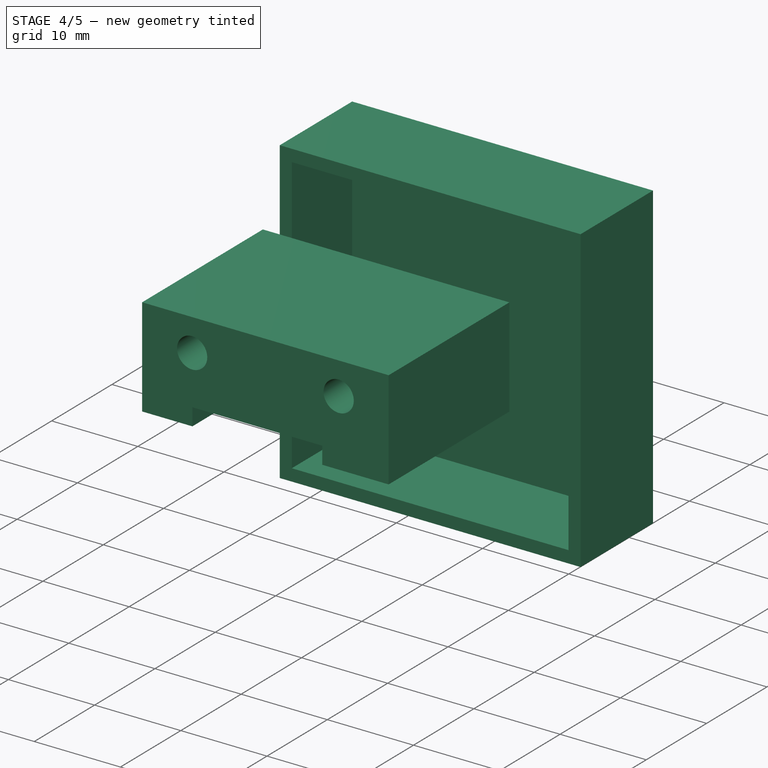
[diagram: stage 4 of 5 — iso view after this stage's code; geometry added in this stage tinted green]
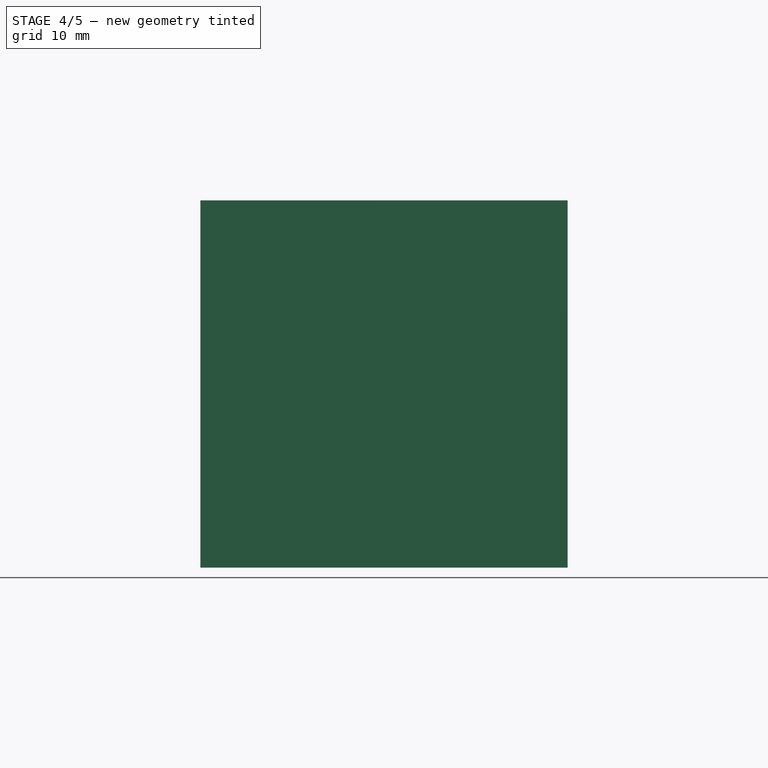
[diagram: stage 4 of 5 — front view after this stage's code; geometry added in this stage tinted green]
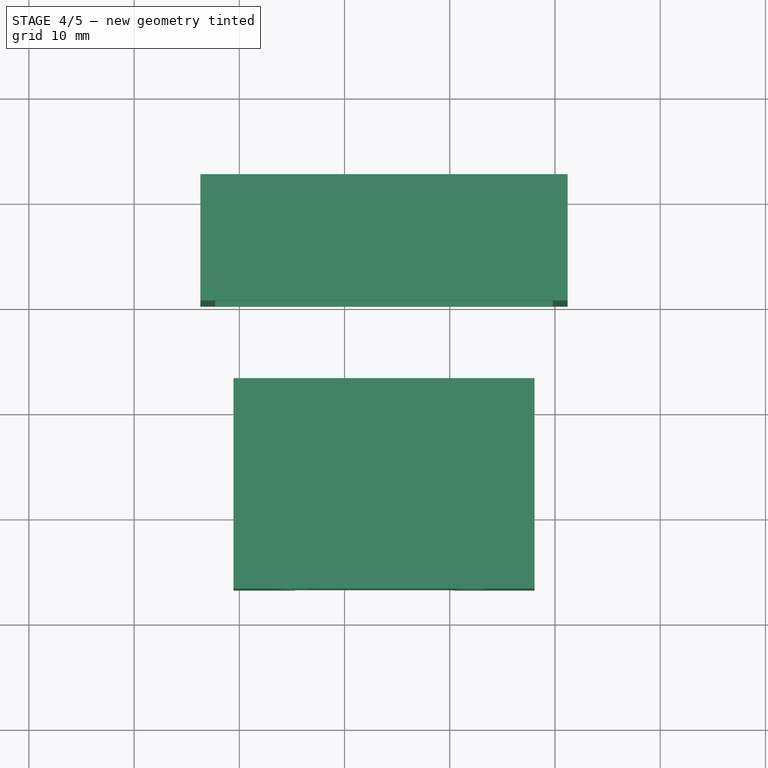
[diagram: stage 4 of 5 — top view after this stage's code; geometry added in this stage tinted green]
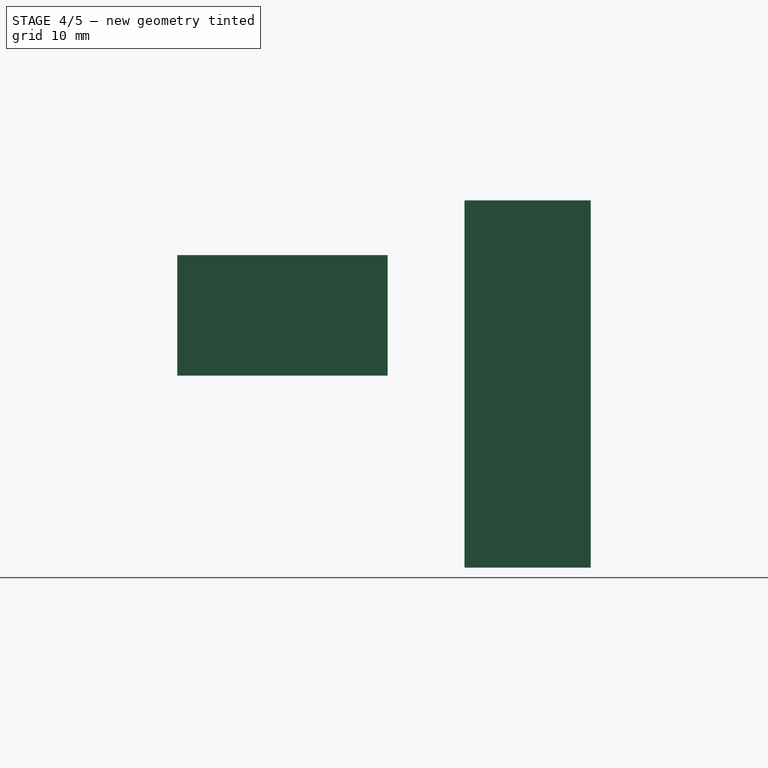
[diagram: stage 4 of 5 — right view after this stage's code; geometry added in this stage tinted green]
FEATURE [Sketcher::SketchObject] Sketch014
  ArcFitTolerance = 1e-06
  AttachmentSupport = -> [Pad005]
  ExternalGeometry = -> [Pad005]
  FullyConstrained = true
  MakeInternals = false
  MapMode = 5
  Placement = pos=(0,32.95,0) rot=(1,0,0;1.5708rad)
  sketch-geometry (8):
    g0: LineSegment StartX=-2.15022 StartY=16.7 StartZ=0 EndX=-2.15022 EndY=-15.1 EndZ=0
    g1: LineSegment StartX=-2.15022 StartY=-15.1 StartZ=0 EndX=29.6498 EndY=-15.1 EndZ=0
    g2: LineSegment StartX=29.6498 StartY=-15.1 StartZ=0 EndX=29.6498 EndY=16.7 EndZ=0
    g3: LineSegment StartX=29.6498 StartY=16.7 StartZ=0 EndX=-2.15022 EndY=16.7 EndZ=0
    g4: LineSegment StartX=-0.75022 StartY=13.7 StartZ=0 EndX=-0.75022 EndY=-13.7 EndZ=0
    g5: LineSegment StartX=-0.75022 StartY=-13.7 StartZ=0 EndX=28.2498 EndY=-13.7 EndZ=0
    g6: LineSegment StartX=28.2498 StartY=-13.7 StartZ=0 EndX=28.2498 EndY=13.7 EndZ=0
    g7: LineSegment StartX=28.2498 StartY=13.7 StartZ=0 EndX=-0.75022 EndY=13.7 EndZ=0
  constraints (22):
    c: Coincident(g0,g1)
    c: Coincident(g1,g2)
    c: Coincident(g2,g3)
    c: Coincident(g3,g0)
    c: Vertical(g0)
    c: Vertical(g2)
    c: Horizontal(g1)
    c: Horizontal(g3)
    c: Coincident(g0,g-3)
    c: Coincident(g1,g-4)
    c: Coincident(g4,g5)
    c: Coincident(g5,g6)
    c: Coincident(g6,g7)
    c: Coincident(g7,g4)
    c: Vertical(g4)
    c: Vertical(g6)
    c: Horizontal(g5)
    c: Horizontal(g7)
    c: DistanceX(g0,g4) = 1.4
    c: DistanceY(g6,g2) = 3
    c: DistanceX(g5,g1) = 1.4
    c: DistanceY(g0,g4) = 1.4
FEATURE [PartDesign::Pad] Pad006
  BaseFeature = -> Pad005
  Direction = (0,-1,2e-16)
  Length = 32.4
  Length2 = 10
  Profile = -> Sketch014
  ReferenceAxis = -> Sketch014 [N_Axis]
  Refine = true
  Suppressed = false
  Type = 0
FEATURE [PartDesign::Body] Body004  label="BackSide"
  AllowCompound = false
  Group = -> [Binder004,Sketch015,Pad007,Sketch016,Pocket008,Sketch017,Pad008]
  Origin = -> Origin007
  Tip = -> Pad008
FEATURE [PartDesign::SubShapeBinder] Binder005
  BindCopyOnChange = 0
  BindMode = 0
  ClaimChildren = false
  Context = -> Body005 [Binder005.]
  Fuse = false
  MakeFace = true
  OffsetFill = false
  OffsetIntersection = false
  OffsetJoinType = 0
  OffsetOpenResult = false
  PartialLoad = false
  Refine = true
  Relative = true
  Support = -> [Body003,CartridgeMk1_1]
  _Version = 2
FEATURE [Sketcher::SketchObject] Sketch018
  ArcFitTolerance = 1e-06
  AttachmentSupport = -> [Binder005]
  ExternalGeometry = -> [Binder005]
  FullyConstrained = true
  MakeInternals = false
  MapMode = 5
  Placement = pos=(0,32.95,0) rot=(1,0,0;1.5708rad)
  sketch-geometry (10):
    g0: LineSegment StartX=-0.55022 StartY=13.05 StartZ=0 EndX=28.0498 EndY=13.05 EndZ=0
    g1: LineSegment StartX=28.0498 StartY=13.05 StartZ=0 EndX=28.0498 EndY=1.6 EndZ=0
    g2: LineSegment StartX=28.0498 StartY=1.6 StartZ=0 EndX=20.3383 EndY=1.6 EndZ=0
    g3: LineSegment StartX=20.3383 StartY=1.6 StartZ=0 EndX=20.3383 EndY=3.6 EndZ=0
    g4: LineSegment StartX=20.3383 StartY=3.6 StartZ=0 EndX=5.2783 EndY=3.6 EndZ=0
    g5: LineSegment StartX=5.2783 StartY=3.6 StartZ=0 EndX=5.2783 EndY=1.6 EndZ=0
    g6: LineSegment StartX=5.2783 StartY=1.6 StartZ=0 EndX=-0.55022 EndY=1.6 EndZ=0
    g7: LineSegment StartX=-0.55022 StartY=1.6 StartZ=0 EndX=-0.55022 EndY=13.05 EndZ=0
    g8: Circle CenterX=5.24978 CenterY=9.3 CenterZ=0 NormalX=0 NormalY=0 NormalZ=1 AngleXU=0 Radius=1.75
    g9: Circle CenterX=22.2498 CenterY=9.3 CenterZ=0 NormalX=0 NormalY=0 NormalZ=1 AngleXU=0 Radius=1.75
  constraints (28):
    c: Horizontal(g0)
    c: Coincident(g0,g1)
    c: Vertical(g1)
    c: Coincident(g1,g2)
    c: Horizontal(g2)
    c: Coincident(g2,g3)
    c: Vertical(g3)
    c: Coincident(g3,g4)
    c: Horizontal(g4)
    c: Coincident(g4,g5)
    c: Vertical(g5)
    c: Coincident(g5,g6)
    c: Horizontal(g6)
    c: Coincident(g6,g7)
    c: Vertical(g7)
    c: Coincident(g7,g0)
    c: PointOnObject(g5,g2)
    c: PointOnObject(g-5,g2)
    c: DistanceY(g5,g5) = 2
    c: DistanceX(g4,g-7) = 1
    c: DistanceX(g-6,g3) = 1
    c: Coincident(g8,g-3)
    c: Equal(g8,g-3)
    c: Coincident(g9,g-4)
    c: Equal(g9,g-4)
    c: DistanceX(g-8,g0) = 0.2
    c: DistanceX(g0,g-8) = 0.2
    c: DistanceY(g0,g-8) = 0.65
FEATURE [PartDesign::Pad] Pad009
  Direction = (0,-1,2e-16)
  Length = 20
  Length2 = 10
  Profile = -> Sketch018
  ReferenceAxis = -> Sketch018 [N_Axis]
  Refine = true
  Suppressed = false
  Type = 0
FEATURE [PartDesign::Body] Body005  label="FrontSide"
  AllowCompound = false
  Group = -> [Binder005,Sketch018,Pad009,Sketch019,Pad010,Sketch020,Pocket009]
  Origin = -> Origin008
  Tip = -> Pocket009
FEATURE [TechDraw::DrawSVGTemplate] Template
  Height = 210
  Orientation = 1
  Template = /Applications/FreeCAD.app/Contents/Resources/share/Mod/TechDraw/Templates/Default_Template_A4_Landscape.svg
  Width = 297
FEATURE [PartDesign::SubShapeBinder] Binder006
  BindCopyOnChange = 0
  BindMode = 0
  ClaimChildren = false
  Context = -> Body006 [Binder006.]
  Fuse = false
  MakeFace = true
  OffsetFill = false
  OffsetIntersection = false
  OffsetJoinType = 0
  OffsetOpenResult = false
  PartialLoad = false
  Refine = true
  Relative = true
  Support = -> [Body003,Body002]
  _Version = 2
FEATURE [Sketcher::SketchObject] Sketch021
  ArcFitTolerance = 1e-06
  AttachmentSupport = -> [Binder006]
  ExternalGeometry = -> [Binder006]
  FullyConstrained = true
  MakeInternals = false
  MapMode = 5
  Placement = pos=(0,50.25,0) rot=(0,0.707107,0.707107;3.14159rad)
  sketch-geometry (4):
    g0: LineSegment StartX=-31.1998 StartY=18.25 StartZ=0 EndX=-31.1998 EndY=-16.65 EndZ=0
    g1: LineSegment StartX=-31.1998 StartY=-16.65 StartZ=0 EndX=3.70022 EndY=-16.65 EndZ=0
    g2: LineSegment StartX=3.70022 StartY=-16.65 StartZ=0 EndX=3.70022 EndY=18.25 EndZ=0
    g3: LineSegment StartX=3.70022 StartY=18.25 StartZ=0 EndX=-31.1998 EndY=18.25 EndZ=0
  constraints (12):
    c: Coincident(g0,g1)
    c: Coincident(g1,g2)
    c: Coincident(g2,g3)
    c: Coincident(g3,g0)
    c: Vertical(g0)
    c: Vertical(g2)
    c: Horizontal(g1)
    c: Horizontal(g3)
    c: DistanceX(g-4,g1) = 1.55
    c: DistanceY(g1,g-4) = 1.55
    c: DistanceX(g0,g-3) = 1.55
    c: DistanceY(g-3,g0) = 1.55
FEATURE [PartDesign::Pad] Pad011
  Direction = (0,1,-2e-16)
  Length = 2
  Length2 = 10
  Profile = -> Sketch021
  ReferenceAxis = -> Sketch021 [N_Axis]
  Refine = true
  Suppressed = false
  Type = 0
FEATURE [Sketcher::SketchObject] Sketch022
  ArcFitTolerance = 1e-06
  AttachmentSupport = -> [Pad011]
  ExternalGeometry = -> [Pad011]
  FullyConstrained = true
  MakeInternals = false
  MapMode = 5
  Placement = pos=(0,50.25,-2.05e-14) rot=(1,0,0;1.5708rad)
  sketch-geometry (8):
    g0: LineSegment StartX=-3.70022 StartY=18.25 StartZ=0 EndX=-3.70022 EndY=-16.65 EndZ=0
    g1: LineSegment StartX=-3.70022 StartY=-16.65 StartZ=0 EndX=31.1998 EndY=-16.65 EndZ=0
    g2: LineSegment StartX=31.1998 StartY=-16.65 StartZ=0 EndX=31.1998 EndY=18.25 EndZ=0
    g3: LineSegment StartX=31.1998 StartY=18.25 StartZ=0 EndX=-3.70022 EndY=18.25 EndZ=0
    g4: LineSegment StartX=-2.30022 StartY=16.85 StartZ=0 EndX=-2.30022 EndY=-15.25 EndZ=0
    g5: LineSegment StartX=-2.30022 StartY=-15.25 StartZ=0 EndX=29.7998 EndY=-15.25 EndZ=0
    g6: LineSegment StartX=29.7998 StartY=-15.25 StartZ=0 EndX=29.7998 EndY=16.85 EndZ=0
    g7: LineSegment StartX=29.7998 StartY=16.85 StartZ=0 EndX=-2.30022 EndY=16.85 EndZ=0
  constraints (22):
    c: Coincident(g0,g1)
    c: Coincident(g1,g2)
    c: Coincident(g2,g3)
    c: Coincident(g3,g0)
    c: Vertical(g0)
    c: Vertical(g2)
    c: Horizontal(g1)
    c: Horizontal(g3)
    c: Coincident(g0,g-3)
    c: Coincident(g1,g-4)
    c: Coincident(g4,g5)
    c: Coincident(g5,g6)
    c: Coincident(g6,g7)
    c: Coincident(g7,g4)
    c: Vertical(g4)
    c: Vertical(g6)
    c: Horizontal(g5)
    c: Horizontal(g7)
    c: DistanceX(g6,g2) = 1.4
    c: DistanceY(g6,g2) = 1.4
    c: DistanceY(g1,g5) = 1.4
    c: DistanceX(g0,g4) = 1.4
FEATURE [PartDesign::Pad] Pad012
  BaseFeature = -> Pad011
  Direction = (0,-1,2e-16)
  Length = 10
  Length2 = 10
  Profile = -> Sketch022
  ReferenceAxis = -> Sketch022 [N_Axis]
  Refine = true
  Suppressed = false
  Type = 0
FEATURE [PartDesign::Body] Body002  label="TopPanel"
  AllowCompound = false
  Group = -> [Binder002,Sketch007,Pad003,Pad004,Sketch008,Pocket003,Sketch023,Pad013]
  Origin = -> Origin004
  Tip = -> Pad013
FEATURE [App::TextDocument] Text_document  label="Manufacturing Notes"
  Text = # Manufacturing notes\n\nPrint the TopPanel facing the top side up. Don't use Support for the holes in the bottom.\nuse Tree Support for the studs at the front.\n\nPrint the housing upside down. Tree support for the studs.\n\nIMPORTANT: reduce the print speed:\n\n* Outer Wall: 30 mm/s\n* Inner Wall: 30 mm/s\n\nOtherwise, the studs will not be exact enough to hold pieces and look bad.
FEATURE [Sketcher::SketchObject] Sketch024
  ArcFitTolerance = 1e-06
  AttachmentSupport = -> [Pad006]
  ExternalGeometry = -> [Binder003,Pad006]
  FullyConstrained = true
  MakeInternals = false
  MapMode = 5
  Placement = pos=(0,0,16.7) rot=(0,0,1;0rad)
  sketch-geometry (5):
    g0: LineSegment StartX=10.9998 StartY=0.55 StartZ=0 EndX=16.4998 EndY=0.55 EndZ=0
    g1: LineSegment StartX=16.4998 StartY=0.55 StartZ=0 EndX=16.4998 EndY=27.55 EndZ=0
    g2: LineSegment StartX=16.4998 StartY=27.55 StartZ=0 EndX=10.9998 EndY=27.55 EndZ=0
    g3: LineSegment StartX=10.9998 StartY=27.55 StartZ=0 EndX=10.9998 EndY=0.55 EndZ=0
    g4: GeomPoint X=13.7498 Y=0.55 Z=0
  constraints (12):
    c: Coincident(g0,g1)
    c: Coincident(g1,g2)
    c: Coincident(g2,g3)
    c: Coincident(g3,g0)
    c: Horizontal(g0)
    c: Horizontal(g2)
    c: Vertical(g1)
    c: Vertical(g3)
    c: Symmetric(g0,g0,g4)
    c: Symmetric(g-4,g-4,g4)
    c: DistanceX(g2,g2) = 5.5
    c: DistanceY(g2,g-3) = 21
FEATURE [PartDesign::Pocket] Pocket010
  BaseFeature = -> Pad006
  Direction = (0,0,-1)
  Length = 2
  Length2 = 5
  Profile = -> Sketch024
  ReferenceAxis = -> Sketch024 [N_Axis]
  Refine = true
  Suppressed = false
  Type = 0
FEATURE [PartDesign::Body] Body003  label="Housing"
  AllowCompound = false
  Group = -> [Binder003,Sketch013,Pad005,Sketch014,Pad006,Sketch024,Pocket010]
  Origin = -> Origin006
  Tip = -> Pocket010
FEATURE [TechDraw::DrawProjGroupItem] View
  CoarseView = false
  Direction = (0,0,1)
  Focus = 100
  HardHidden = false
  IsoCount = 0
  IsoHidden = false
  IsoVisible = false
  LockPosition = false
  Perspective = false
  Rotation = 0
  RotationVector = (1,0,0)
  ScaleType = 0
  ScrubCount = 1
  SeamHidden = false
  SeamVisible = true
  SmoothHidden = false
  SmoothVisible = true
  Source = -> [Body003,CartridgeMk1_1]
  Type = 0
  X = 39.7182
  XDirection = (1,0,0)
  Y = 173.962
FEATURE [TechDraw::DrawViewSection] SectionView  label="Cartridge Slot"
  BaseView = -> View
  CoarseView = false
  CutSurfaceDisplay = 2
  Direction = (1e-16,1,0)
  FileGeomPattern = /Applications/FreeCAD.app/Contents/Resources/share/Mod/TechDraw/PAT/FCPAT.pat
  FileHatchPattern = /Applications/FreeCAD.app/Contents/Resources/share/Mod/TechDraw/Patterns/simple.svg
  Focus = 100
  FuseBeforeCut = false
  HardHidden = false
  HatchOffset = (0,0,0)
  HatchRotation = 0
  HatchScale = 1
  IsoCount = 0
  IsoHidden = false
  IsoVisible = false
  LockPosition = false
  NameGeomPattern = Diamond
  Perspective = false
  Rotation = 0
  ScaleType = 0
  ScrubCount = 1
  SeamHidden = false
  SeamVisible = true
  SectionDirection = 4
  SectionLineStretch = 1
  SectionNormal = (1e-16,1,0)
  SectionOrigin = (13.75,4.25,0.8)
  SmoothHidden = false
  SmoothVisible = true
  Source = -> [Body003,CartridgeMk1_1]
  TrimAfterCut = false
  UsePreviousCut = false
  X = 26.5932
  XDirection = (1,-1e-16,0)
  Y = 188.422
FEATURE [TechDraw::DrawPage] Page
  KeepUpdated = true
  NextBalloonIndex = 1
  ProjectionType = 0
  Template = -> Template
  Views = -> [View,SectionView]
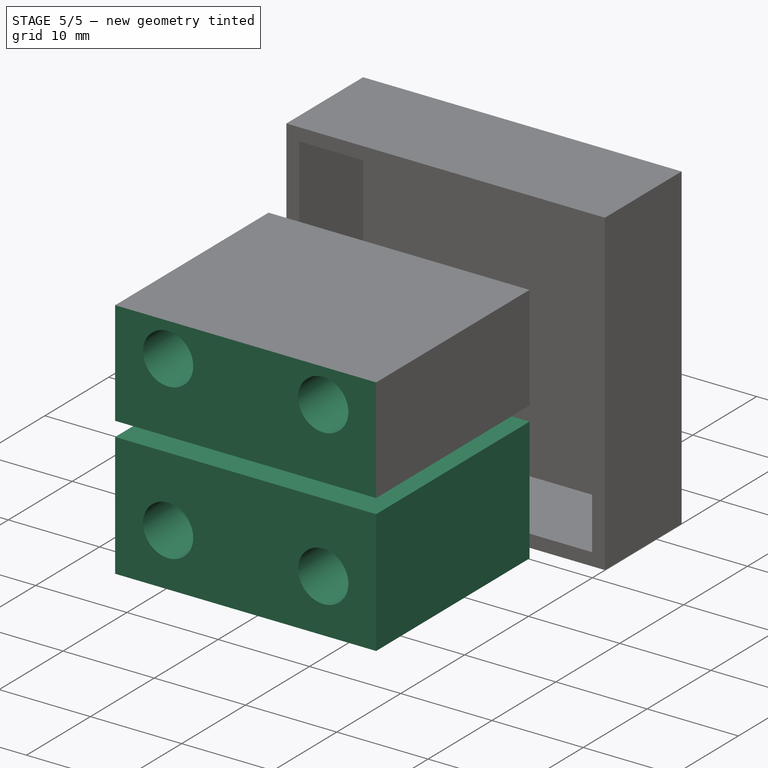
[diagram: stage 5 of 5 — iso view after this stage's code; geometry added in this stage tinted green]
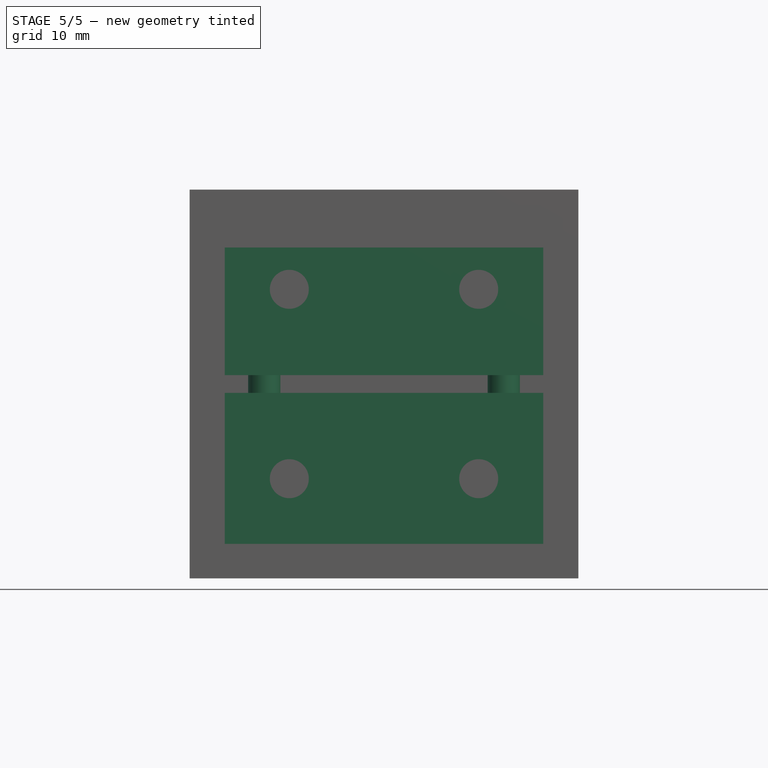
[diagram: stage 5 of 5 — front view after this stage's code; geometry added in this stage tinted green]
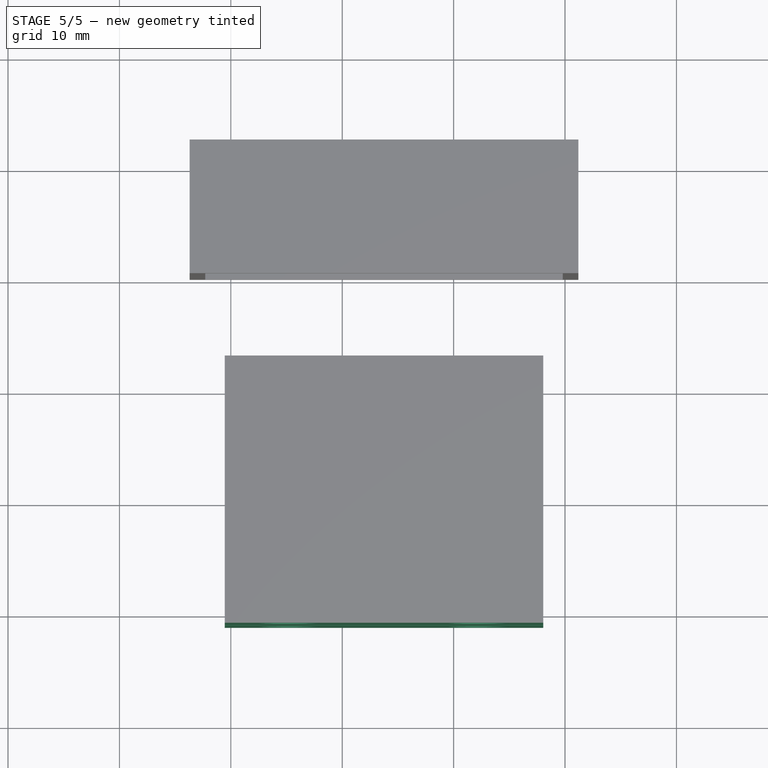
[diagram: stage 5 of 5 — top view after this stage's code; geometry added in this stage tinted green]
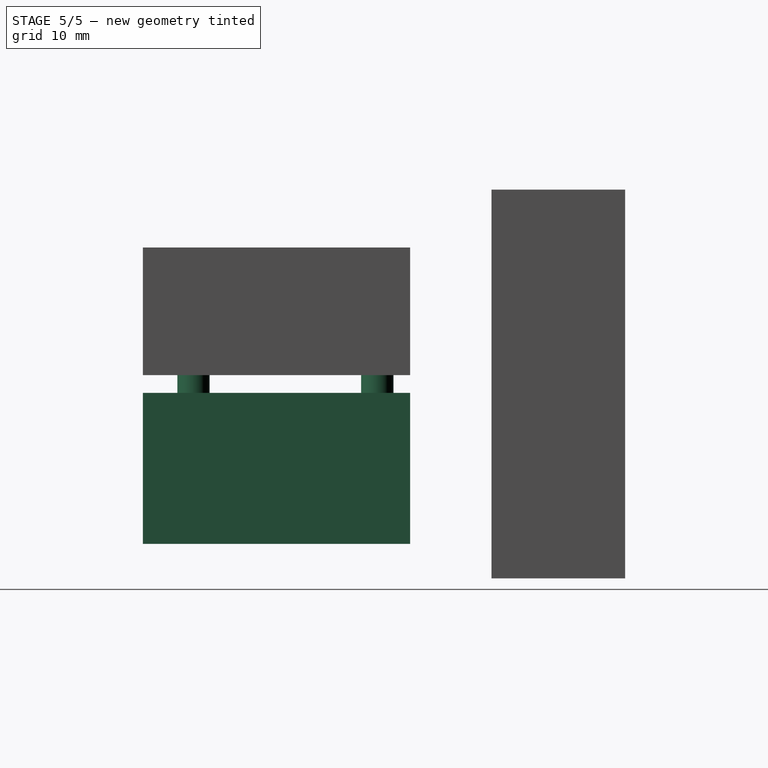
[diagram: stage 5 of 5 — right view after this stage's code; geometry added in this stage tinted green]
FEATURE [PartDesign::SubShapeBinder] Binder004
  BindCopyOnChange = 0
  BindMode = 0
  ClaimChildren = false
  Context = -> Body004 [Binder004.]
  Fuse = false
  MakeFace = true
  OffsetFill = false
  OffsetIntersection = false
  OffsetJoinType = 0
  OffsetOpenResult = false
  PartialLoad = false
  Refine = true
  Relative = true
  Support = -> [Body003,CartridgeMk1_1]
  _Version = 2
FEATURE [Sketcher::SketchObject] Sketch015
  ArcFitTolerance = 1e-06
  AttachmentSupport = -> [Binder004]
  ExternalGeometry = -> [Binder004]
  FullyConstrained = true
  MakeInternals = false
  MapMode = 5
  Placement = pos=(0,32.95,0) rot=(1,0,0;1.5708rad)
  sketch-geometry (6):
    g0: LineSegment StartX=-0.55022 StartY=-13.55 StartZ=0 EndX=28.0498 EndY=-13.55 EndZ=0
    g1: LineSegment StartX=28.0498 StartY=-13.55 StartZ=0 EndX=28.0498 EndY=0 EndZ=0
    g2: LineSegment StartX=28.0498 StartY=0 StartZ=0 EndX=-0.55022 EndY=0 EndZ=0
    g3: LineSegment StartX=-0.55022 StartY=0 StartZ=0 EndX=-0.55022 EndY=-13.55 EndZ=0
    g4: Circle CenterX=5.24978 CenterY=-7.7 CenterZ=0 NormalX=0 NormalY=0 NormalZ=1 AngleXU=0 Radius=1.75
    g5: Circle CenterX=22.2498 CenterY=-7.7 CenterZ=0 NormalX=0 NormalY=0 NormalZ=1 AngleXU=0 Radius=1.75
  constraints (16):
    c: Coincident(g0,g1)
    c: Coincident(g1,g2)
    c: Coincident(g2,g3)
    c: Coincident(g3,g0)
    c: Horizontal(g0)
    c: Horizontal(g2)
    c: Vertical(g1)
    c: Vertical(g3)
    c: DistanceY(g-5,g0) = 0.15
    c: DistanceX(g-5,g0) = 0.2
    c: DistanceX(g0,g-5) = 0.2
    c: PointOnObject(g-6,g2)
    c: Diameter(g4) = 3.5
    c: Coincident(g4,g-3)
    c: Diameter(g5) = 3.5
    c: Coincident(g5,g-4)
FEATURE [PartDesign::Pad] Pad007
  Direction = (0,-1,2e-16)
  Length = 24
  Length2 = 10
  Profile = -> Sketch015
  ReferenceAxis = -> Sketch015 [N_Axis]
  Refine = true
  Suppressed = false
  Type = 0
FEATURE [Sketcher::SketchObject] Sketch016
  ArcFitTolerance = 1e-06
  AttachmentSupport = -> [Pad007]
  ExternalGeometry = -> [Pad007]
  FullyConstrained = true
  MakeInternals = false
  MapMode = 5
  Placement = pos=(0,8.95,0) rot=(1,0,0;1.5708rad)
  sketch-geometry (2):
    g0: Circle CenterX=5.24978 CenterY=-7.7 CenterZ=0 NormalX=0 NormalY=0 NormalZ=1 AngleXU=0 Radius=2.75
    g1: Circle CenterX=22.2498 CenterY=-7.7 CenterZ=0 NormalX=0 NormalY=0 NormalZ=1 AngleXU=0 Radius=2.75
  constraints (4):
    c: Diameter(g0) = 5.5
    c: Coincident(g0,g-3)
    c: Diameter(g1) = 5.5
    c: Coincident(g1,g-4)
FEATURE [PartDesign::Pocket] Pocket008
  BaseFeature = -> Pad007
  Direction = (0,1,-2e-16)
  Length = 8
  Length2 = 5
  Profile = -> Sketch016
  ReferenceAxis = -> Sketch016 [N_Axis]
  Refine = true
  Suppressed = false
  Type = 0
FEATURE [Sketcher::SketchObject] Sketch017
  ArcFitTolerance = 1e-06
  AttachmentSupport = -> [Pocket008]
  ExternalGeometry = -> [Binder004]
  FullyConstrained = true
  MakeInternals = false
  MapMode = 5
  Placement = pos=(0,0,7.3e-15) rot=(0,0,1;0rad)
  sketch-geometry (4):
    g0: Circle CenterX=3 CenterY=13.5 CenterZ=0 NormalX=0 NormalY=0 NormalZ=1 AngleXU=0 Radius=1.45
    g1: Circle CenterX=24.5 CenterY=13.5 CenterZ=0 NormalX=0 NormalY=0 NormalZ=1 AngleXU=0 Radius=1.45
    g2: Circle CenterX=24.5 CenterY=30 CenterZ=0 NormalX=0 NormalY=0 NormalZ=1 AngleXU=0 Radius=1.45
    g3: Circle CenterX=3 CenterY=30 CenterZ=0 NormalX=0 NormalY=0 NormalZ=1 AngleXU=0 Radius=1.45
  constraints (8):
    c: Coincident(g0,g-3)
    c: Coincident(g1,g-5)
    c: Coincident(g2,g-6)
    c: Coincident(g3,g-4)
    c: Diameter(g3) = 2.9
    c: Diameter(g2) = 2.9
    c: Diameter(g0) = 2.9
    c: Diameter(g1) = 2.9
FEATURE [PartDesign::Pad] Pad008
  BaseFeature = -> Pocket008
  Direction = (0,0,1)
  Length = 1.6
  Length2 = 10
  Profile = -> Sketch017
  ReferenceAxis = -> Sketch017 [N_Axis]
  Refine = true
  Suppressed = false
  Type = 0
FEATURE [Sketcher::SketchObject] Sketch019
  ArcFitTolerance = 1e-06
  AttachmentSupport = -> [Pad009]
  ExternalGeometry = -> [Pad009]
  FullyConstrained = true
  MakeInternals = false
  MapMode = 5
  Placement = pos=(0,12.95,0) rot=(1,0,0;1.5708rad)
  sketch-geometry (6):
    g0: LineSegment StartX=-0.55022 StartY=13.05 StartZ=0 EndX=-0.55022 EndY=1.6 EndZ=0
    g1: LineSegment StartX=-0.55022 StartY=1.6 StartZ=0 EndX=28.0498 EndY=1.6 EndZ=0
    g2: LineSegment StartX=28.0498 StartY=1.6 StartZ=0 EndX=28.0498 EndY=13.05 EndZ=0
    g3: LineSegment StartX=28.0498 StartY=13.05 StartZ=0 EndX=-0.55022 EndY=13.05 EndZ=0
    g4: Circle CenterX=5.24978 CenterY=9.3 CenterZ=0 NormalX=0 NormalY=0 NormalZ=1 AngleXU=0 Radius=1.75
    g5: Circle CenterX=22.2498 CenterY=9.3 CenterZ=0 NormalX=0 NormalY=0 NormalZ=1 AngleXU=0 Radius=1.75
  constraints (14):
    c: Coincident(g0,g1)
    c: Coincident(g1,g2)
    c: Coincident(g2,g3)
    c: Coincident(g3,g0)
    c: Vertical(g0)
    c: Vertical(g2)
    c: Horizontal(g1)
    c: Horizontal(g3)
    c: Coincident(g0,g-3)
    c: Coincident(g1,g-4)
    c: Coincident(g4,g-5)
    c: Equal(g4,g-5)
    c: Coincident(g5,g-6)
    c: Equal(g5,g-6)
FEATURE [PartDesign::Pad] Pad010
  BaseFeature = -> Pad009
  Direction = (0,-1,2e-16)
  Length = 4
  Length2 = 10
  Profile = -> Sketch019
  ReferenceAxis = -> Sketch019 [N_Axis]
  Refine = true
  Suppressed = false
  Type = 0
FEATURE [Sketcher::SketchObject] Sketch020
  ArcFitTolerance = 1e-06
  AttachmentSupport = -> [Pad010]
  ExternalGeometry = -> [Pad010]
  FullyConstrained = true
  MakeInternals = false
  MapMode = 5
  Placement = pos=(0,8.95,-2.7e-15) rot=(1,0,0;1.5708rad)
  sketch-geometry (2):
    g0: Circle CenterX=22.2498 CenterY=9.3 CenterZ=0 NormalX=0 NormalY=0 NormalZ=1 AngleXU=0 Radius=2.75
    g1: Circle CenterX=5.24978 CenterY=9.3 CenterZ=0 NormalX=0 NormalY=0 NormalZ=1 AngleXU=0 Radius=2.75
  constraints (4):
    c: Diameter(g0) = 5.5
    c: Coincident(g0,g-3)
    c: Diameter(g1) = 5.5
    c: Coincident(g1,g-4)
FEATURE [PartDesign::Pocket] Pocket009
  BaseFeature = -> Pad010
  Direction = (0,1,-2e-16)
  Length = 8
  Length2 = 5
  Profile = -> Sketch020
  ReferenceAxis = -> Sketch020 [N_Axis]
  Refine = true
  Suppressed = false
  Type = 0
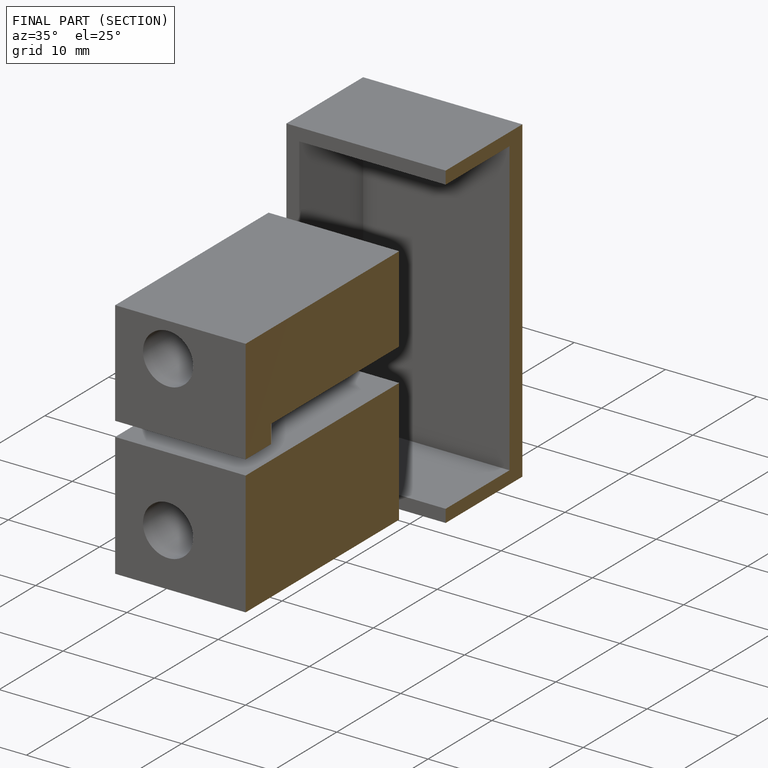
[diagram: finished part — half-section view (interior)]
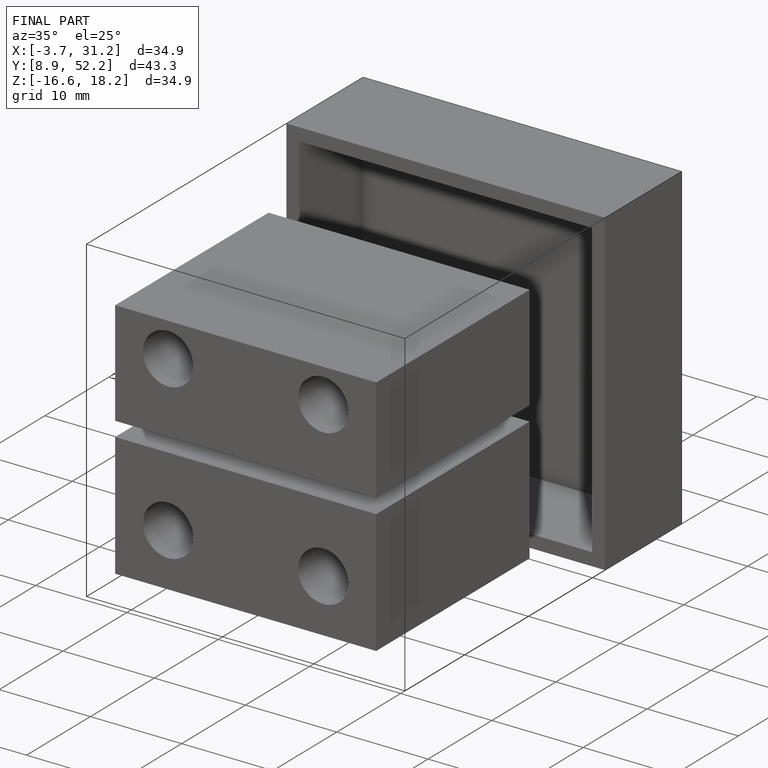
[diagram: finished part — iso view with bounding-box wireframe]
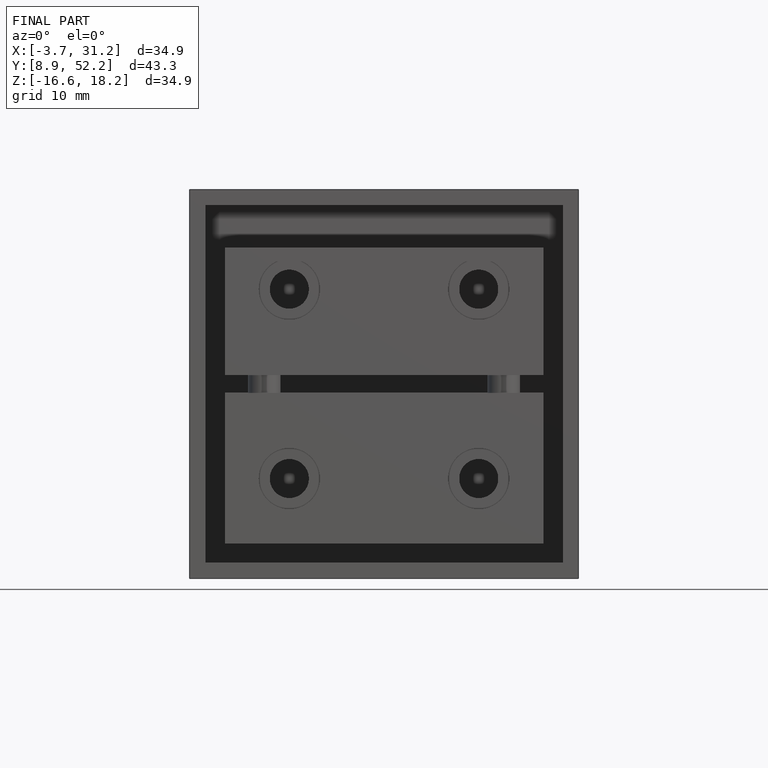
[diagram: finished part — front view with bounding-box wireframe]
